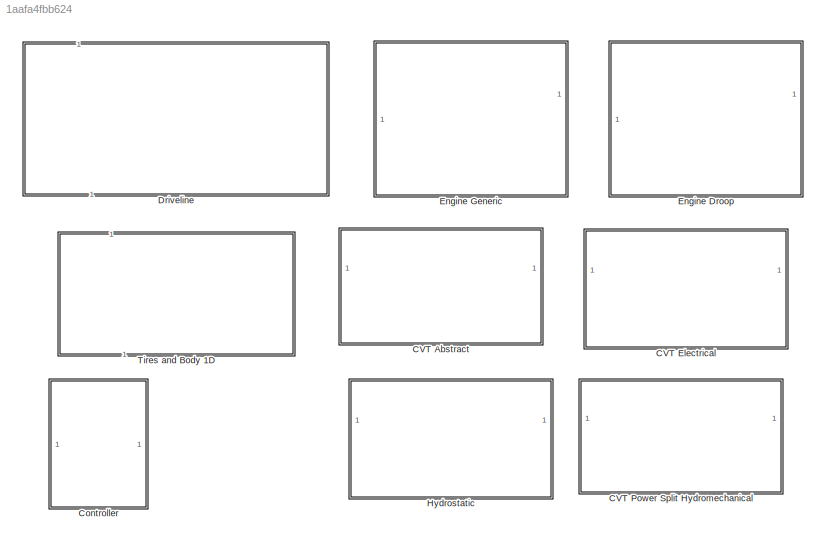
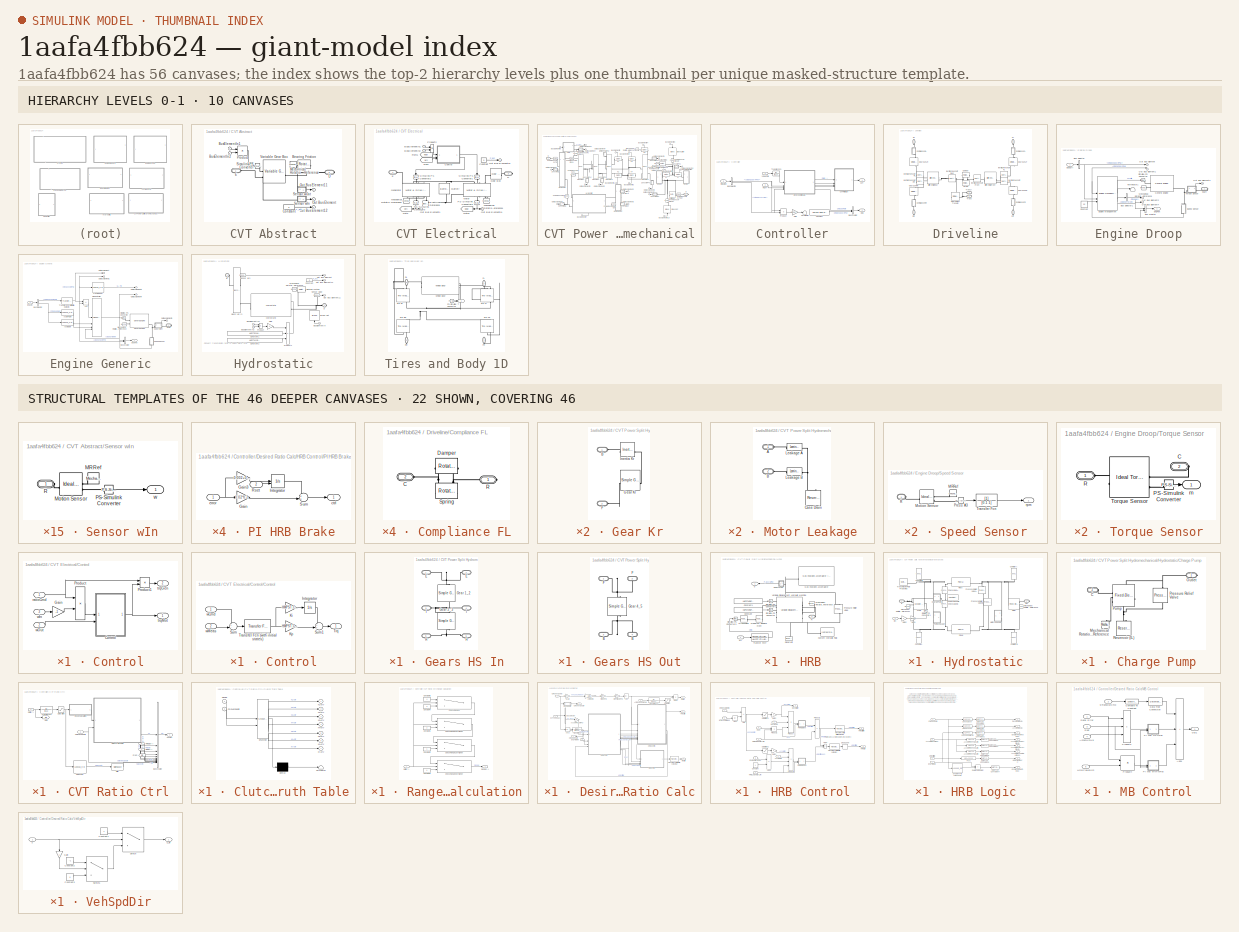
[diagram: thumbnail index - top-2 hierarchy levels (10 canvases) + 22 structural-template representatives of the remaining 46 canvases]
MODEL slx_1aafa4fbb624
KIND library
CONFIG SolverName = VariableStepAuto
BLOCK [SubSystem] CVT Abstract
BLOCK [Reference] CVT Abstract/Bearing Friction  REF=sdl_lib/Couplings & Drives/Springs & Dampers/Rotational Damper
  NameLocation = top
  SourceBlock = sdl_lib/Couplings & Drives/Springs & Dampers/Rotational Damper
  SourceType = Rotational Damper
BLOCK [Inport] CVT Abstract/BusElementIn1
BLOCK [Inport] CVT Abstract/BusElementIn2
BLOCK [Constant] CVT Abstract/Constant
  Value = 0
BLOCK [PMIOPort] CVT Abstract/D
  Port = 2
  Side = Right
BLOCK [PMIOPort] CVT Abstract/E
  Side = Left
BLOCK [Reference] CVT Abstract/Mechanical Rotational Reference  REF=fl_lib/Mechanical/Rotational Elements/Mechanical
Rotational Reference
  SourceBlock = fl_lib/Mechanical/Rotational Elements/Mechanical\nRotational Reference
  SourceType = Mechanical\nRotational Reference
BLOCK [Outport] CVT Abstract/Out Bus Element
BLOCK [Outport] CVT Abstract/Out Bus Element11
  NameLocation = top
BLOCK [Outport] CVT Abstract/Out Bus Element12
BLOCK [Product] CVT Abstract/Product
BLOCK [SubSystem] CVT Abstract/Sensor wIn
  NameLocation = top
BLOCK [Reference] CVT Abstract/Sensor wIn/MRRef  REF=fl_lib/Mechanical/Rotational Elements/Mechanical
Rotational Reference
  NameLocation = right
  SourceBlock = fl_lib/Mechanical/Rotational Elements/Mechanical\nRotational Reference
  SourceType = Mechanical\nRotational Reference
BLOCK [Reference] CVT Abstract/Sensor wIn/Motion Sensor  REF=fl_lib/Mechanical/Mechanical Sensors/Ideal Rotational
Motion Sensor
  SourceBlock = fl_lib/Mechanical/Mechanical Sensors/Ideal Rotational\nMotion Sensor
  SourceType = Ideal Rotational\nMotion Sensor
BLOCK [Reference] CVT Abstract/Sensor wIn/PS-Simulink Converter  REF=nesl_utility/PS-Simulink
Converter
  SourceBlock = nesl_utility/PS-Simulink\nConverter
  SourceType = PS-Simulink\nConverter
BLOCK [PMIOPort] CVT Abstract/Sensor wIn/R
  Side = Left
BLOCK [Outport] CVT Abstract/Sensor wIn/w
BLOCK [SubSystem] CVT Abstract/Sensor wOut
  NameLocation = top
BLOCK [Reference] CVT Abstract/Sensor wOut/MRRef  REF=fl_lib/Mechanical/Rotational Elements/Mechanical
Rotational Reference
  NameLocation = right
  SourceBlock = fl_lib/Mechanical/Rotational Elements/Mechanical\nRotational Reference
  SourceType = Mechanical\nRotational Reference
BLOCK [Reference] CVT Abstract/Sensor wOut/Motion Sensor  REF=fl_lib/Mechanical/Mechanical Sensors/Ideal Rotational
Motion Sensor
  SourceBlock = fl_lib/Mechanical/Mechanical Sensors/Ideal Rotational\nMotion Sensor
  SourceType = Ideal Rotational\nMotion Sensor
BLOCK [Reference] CVT Abstract/Sensor wOut/PS-Simulink Converter  REF=nesl_utility/PS-Simulink
Converter
  SourceBlock = nesl_utility/PS-Simulink\nConverter
  SourceType = PS-Simulink\nConverter
BLOCK [PMIOPort] CVT Abstract/Sensor wOut/R
  Side = Left
BLOCK [Outport] CVT Abstract/Sensor wOut/w
BLOCK [Reference] CVT Abstract/Simulink-PS Converter  REF=nesl_utility/Simulink-PS
Converter
  SourceBlock = nesl_utility/Simulink-PS\nConverter
  SourceType = Simulink-PS\nConverter
BLOCK [Reference] CVT Abstract/Variable Gear Box  REF=cvt_components_lib/Variable  (lib defined in slx_8b8a1d3bcfde, slx_9261503687ac, +1 more)
Gear Box
  SourceBlock = cvt_components_lib/Variable\nGear Box
  SourceType = Variable Ratio Gear Box
BLOCK [SubSystem] CVT Electrical
  VariantControl = Electrical
BLOCK [Reference] CVT Electrical/Battery  REF=batteryecm_lib/Battery
  LibrarySourceBlock = ee_lib/Sources/Battery
  NameLocation = right
  SourceBlock = batteryecm_lib/Battery
  SourceType = Battery
BLOCK [Inport] CVT Electrical/BusElementIn1
BLOCK [Inport] CVT Electrical/BusElementIn2
BLOCK [Constant] CVT Electrical/Constant
  Value = 0
BLOCK [SubSystem] CVT Electrical/Control
BLOCK [SubSystem] CVT Electrical/Control/Control
BLOCK [Integrator] CVT Electrical/Control/Control/Integrator
BLOCK [Gain] CVT Electrical/Control/Control/Ki
  Gain = HMPST.Control.Ki
BLOCK [Gain] CVT Electrical/Control/Control/Kp
  Gain = HMPST.Control.Kp
BLOCK [Sum] CVT Electrical/Control/Control/Sum
  Inputs = +-|
BLOCK [Sum] CVT Electrical/Control/Control/Sum1
  Inputs = ++|
BLOCK [Reference] CVT Electrical/Control/Control/Transfer Fcn (with initial states)  REF=simulink_extras/Additional
Linear/Transfer Fcn
(with initial states)
  SourceBlock = simulink_extras/Additional\nLinear/Transfer Fcn\n(with initial states)
  SourceType = Transfer Function with Initial States
BLOCK [Outport] CVT Electrical/Control/Control/Trq
BLOCK [Inport] CVT Electrical/Control/Control/wCmd
BLOCK [Inport] CVT Electrical/Control/Control/wMeas
  Port = 2
BLOCK [Gain] CVT Electrical/Control/Gain
  Gain = -1
BLOCK [Product] CVT Electrical/Control/Product
BLOCK [Product] CVT Electrical/Control/Product1
BLOCK [Inport] CVT Electrical/Control/ratioCmd
BLOCK [Outport] CVT Electrical/Control/trqGen
  Port = 2
BLOCK [Outport] CVT Electrical/Control/trqMot
BLOCK [Inport] CVT Electrical/Control/wIn
  Port = 3
BLOCK [Inport] CVT Electrical/Control/wOut
  Port = 2
BLOCK [PMIOPort] CVT Electrical/D
  Port = 2
  Side = Right
BLOCK [PMIOPort] CVT Electrical/E
  Side = Left
BLOCK [Reference] CVT Electrical/Electrical Reference  REF=fl_lib/Electrical/Electrical Elements/Electrical Reference
  NameLocation = right
  SourceBlock = fl_lib/Electrical/Electrical Elements/Electrical Reference
  SourceType = Electrical Reference
BLOCK [From] CVT Electrical/From
  GotoTag = wIn
BLOCK [From] CVT Electrical/From1
  GotoTag = wOut
BLOCK [Reference] CVT Electrical/Gear Box  REF=fl_lib/Mechanical/Mechanisms/Gear Box
  SourceBlock = fl_lib/Mechanical/Mechanisms/Gear Box
  SourceType = Gear Box
BLOCK [Reference] CVT Electrical/Generator  REF=ee_lib/Electromechanical/Motor & Drive
(System Level)
  NameLocation = left
  SourceBlock = ee_lib/Electromechanical/Motor & Drive\n(System Level)
  SourceType = Motor & Drive\n(System Level)
BLOCK [Goto] CVT Electrical/Goto
  GotoTag = wIn
BLOCK [Goto] CVT Electrical/Goto1
  GotoTag = wOut
  NameLocation = top
BLOCK [Reference] CVT Electrical/Mechanical Rotational Reference  REF=fl_lib/Mechanical/Rotational Elements/Mechanical
Rotational Reference
  NameLocation = right
  SourceBlock = fl_lib/Mechanical/Rotational Elements/Mechanical\nRotational Reference
  SourceType = Mechanical\nRotational Reference
BLOCK [Reference] CVT Electrical/Mechanical Rotational Reference1  REF=fl_lib/Mechanical/Rotational Elements/Mechanical
Rotational Reference
  NameLocation = right
  SourceBlock = fl_lib/Mechanical/Rotational Elements/Mechanical\nRotational Reference
  SourceType = Mechanical\nRotational Reference
BLOCK [Reference] CVT Electrical/Motor  REF=ee_lib/Electromechanical/Motor & Drive
(System Level)
  NameLocation = right
  SourceBlock = ee_lib/Electromechanical/Motor & Drive\n(System Level)
  SourceType = Motor & Drive\n(System Level)
BLOCK [Outport] CVT Electrical/Out Bus Element1
  NameLocation = top
BLOCK [Outport] CVT Electrical/Out Bus Element11
  NameLocation = top
BLOCK [Outport] CVT Electrical/Out Bus Element12
BLOCK [Reference] CVT Electrical/PS-Simulink Converter2  REF=nesl_utility/PS-Simulink
Converter
  NameLocation = left
  SourceBlock = nesl_utility/PS-Simulink\nConverter
  SourceType = PS-Simulink\nConverter
BLOCK [Reference] CVT Electrical/PS-Simulink Converter3  REF=nesl_utility/PS-Simulink
Converter
  NameLocation = left
  SourceBlock = nesl_utility/PS-Simulink\nConverter
  SourceType = PS-Simulink\nConverter
BLOCK [Product] CVT Electrical/Product2
BLOCK [Reference] CVT Electrical/Simulink-PS Converter1  REF=nesl_utility/Simulink-PS
Converter
  NameLocation = left
  SourceBlock = nesl_utility/Simulink-PS\nConverter
  SourceType = Simulink-PS\nConverter
BLOCK [Reference] CVT Electrical/Simulink-PS Converter2  REF=nesl_utility/Simulink-PS
Converter
  NameLocation = left
  SourceBlock = nesl_utility/Simulink-PS\nConverter
  SourceType = Simulink-PS\nConverter
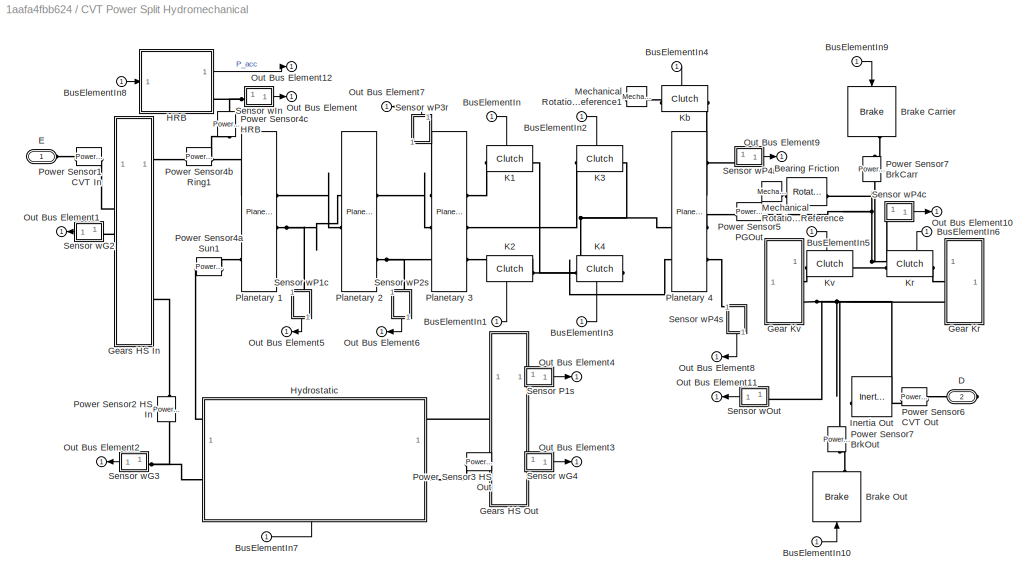
BLOCK [SubSystem] CVT Power Split Hydromechanical
BLOCK [Reference] CVT Power Split Hydromechanical/Bearing Friction  REF=sdl_lib/Couplings & Drives/Springs & Dampers/Rotational Damper
  NameLocation = top
  SourceBlock = sdl_lib/Couplings & Drives/Springs & Dampers/Rotational Damper
  SourceType = Rotational Damper
BLOCK [Reference] CVT Power Split Hydromechanical/Brake Carrier  REF=cvt_components_lib/Brake  (lib defined in slx_8b8a1d3bcfde, slx_9261503687ac, +1 more)
  NameLocation = right
  SourceBlock = cvt_components_lib/Brake
  SourceType = Disk Brake
BLOCK [Reference] CVT Power Split Hydromechanical/Brake Out  REF=cvt_components_lib/Brake  (lib defined in slx_8b8a1d3bcfde, slx_9261503687ac, +1 more)
  NameLocation = left
  SourceBlock = cvt_components_lib/Brake
  SourceType = Disk Brake
BLOCK [Inport] CVT Power Split Hydromechanical/BusElementIn
BLOCK [Inport] CVT Power Split Hydromechanical/BusElementIn1
BLOCK [Inport] CVT Power Split Hydromechanical/BusElementIn10
  NameLocation = top
BLOCK [Inport] CVT Power Split Hydromechanical/BusElementIn2
BLOCK [Inport] CVT Power Split Hydromechanical/BusElementIn3
BLOCK [Inport] CVT Power Split Hydromechanical/BusElementIn4
BLOCK [Inport] CVT Power Split Hydromechanical/BusElementIn5
  NameLocation = top
BLOCK [Inport] CVT Power Split Hydromechanical/BusElementIn6
  NameLocation = top
BLOCK [Inport] CVT Power Split Hydromechanical/BusElementIn7
BLOCK [Inport] CVT Power Split Hydromechanical/BusElementIn8
BLOCK [Inport] CVT Power Split Hydromechanical/BusElementIn9
  NameLocation = top
BLOCK [PMIOPort] CVT Power Split Hydromechanical/D
  Port = 2
  Side = Right
BLOCK [PMIOPort] CVT Power Split Hydromechanical/E
  Side = Left
BLOCK [SubSystem] CVT Power Split Hydromechanical/Gear Kr
BLOCK [PMIOPort] CVT Power Split Hydromechanical/Gear Kr/     B
  Side = Left
BLOCK [PMIOPort] CVT Power Split Hydromechanical/Gear Kr/    F
  Port = 2
  Side = Left
BLOCK [Reference] CVT Power Split Hydromechanical/Gear Kr/Gear Kr  REF=sdl_lib/Gears/Simple Gear
  SourceBlock = sdl_lib/Gears/Simple Gear
  SourceType = Simple Gear
BLOCK [Reference] CVT Power Split Hydromechanical/Gear Kr/Inertia Kr  REF=fl_lib/Mechanical/Rotational Elements/Inertia
  SourceBlock = fl_lib/Mechanical/Rotational Elements/Inertia
  SourceType = Inertia
BLOCK [SubSystem] CVT Power Split Hydromechanical/Gear Kv
BLOCK [PMIOPort] CVT Power Split Hydromechanical/Gear Kv/B
  Side = Right
BLOCK [PMIOPort] CVT Power Split Hydromechanical/Gear Kv/F
  Port = 2
  Side = Right
BLOCK [Reference] CVT Power Split Hydromechanical/Gear Kv/Gear Kv  REF=sdl_lib/Gears/Simple Gear
  SourceBlock = sdl_lib/Gears/Simple Gear
  SourceType = Simple Gear
BLOCK [Reference] CVT Power Split Hydromechanical/Gear Kv/Inertia Kv  REF=fl_lib/Mechanical/Rotational Elements/Inertia
  SourceBlock = fl_lib/Mechanical/Rotational Elements/Inertia
  SourceType = Inertia
BLOCK [SubSystem] CVT Power Split Hydromechanical/Gears HS In
BLOCK [PMIOPort] CVT Power Split Hydromechanical/Gears HS In/    E
  Side = Left
BLOCK [PMIOPort] CVT Power Split Hydromechanical/Gears HS In/    H
  Port = 5
  Side = Left
BLOCK [PMIOPort] CVT Power Split Hydromechanical/Gears HS In/    I
  Port = 3
  Side = Left
BLOCK [PMIOPort] CVT Power Split Hydromechanical/Gears HS In/E
  Port = 2
  Side = Right
BLOCK [Reference] CVT Power Split Hydromechanical/Gears HS In/Gear 1_2  REF=sdl_lib/Gears/Simple Gear
  NameLocation = left
  SourceBlock = sdl_lib/Gears/Simple Gear
  SourceType = Simple Gear
BLOCK [Reference] CVT Power Split Hydromechanical/Gears HS In/Gear 2_3  REF=sdl_lib/Gears/Simple Gear
  NameLocation = left
  SourceBlock = sdl_lib/Gears/Simple Gear
  SourceType = Simple Gear
BLOCK [PMIOPort] CVT Power Split Hydromechanical/Gears HS In/H
  Port = 6
  Side = Right
BLOCK [PMIOPort] CVT Power Split Hydromechanical/Gears HS In/I
  Port = 4
  Side = Right
BLOCK [SubSystem] CVT Power Split Hydromechanical/Gears HS Out
BLOCK [PMIOPort] CVT Power Split Hydromechanical/Gears HS Out/    B
  Port = 3
  Side = Left
BLOCK [PMIOPort] CVT Power Split Hydromechanical/Gears HS Out/    F
  Side = Left
BLOCK [PMIOPort] CVT Power Split Hydromechanical/Gears HS Out/B
  Port = 4
  Side = Right
BLOCK [PMIOPort] CVT Power Split Hydromechanical/Gears HS Out/F
  Port = 2
  Side = Right
BLOCK [Reference] CVT Power Split Hydromechanical/Gears HS Out/Gear 4_5  REF=sdl_lib/Gears/Simple Gear
  NameLocation = right
  SourceBlock = sdl_lib/Gears/Simple Gear
  SourceType = Simple Gear
BLOCK [SubSystem] CVT Power Split Hydromechanical/HRB
BLOCK [Constant] CVT Power Split Hydromechanical/HRB/Constant
  Value = HMPST.HRB.Pump.effVol
BLOCK [Constant] CVT Power Split Hydromechanical/HRB/Constant1
  Value = HMPST.HRB.Pump.effMech
BLOCK [Reference] CVT Power Split Hydromechanical/HRB/Custom Hydraulic Fluid  REF=fl_lib/Isothermal Liquid/Utilities/Isothermal Liquid
Properties (IL)
  LibrarySourceBlock = fl_lib/Hydraulic/Hydraulic Utilities/Custom Hydraulic\nFluid
  NameLocation = right
  SourceBlock = fl_lib/Isothermal Liquid/Utilities/Isothermal Liquid\nProperties (IL)
  SourceType = Isothermal Liquid\nProperties (IL)
BLOCK [Reference] CVT Power Split Hydromechanical/HRB/Gas-Charged Accumulator  REF=SimscapeFluids_lib/Isothermal Liquid/Tanks & Accumulators/Gas-Charged
Accumulator (IL)
  LibrarySourceBlock = sh_lib/Accumulators/Gas-Charged\nAccumulator
  SourceBlock = SimscapeFluids_lib/Isothermal Liquid/Tanks & Accumulators/Gas-Charged\nAccumulator (IL)
  SourceType = Gas-Charged\nAccumulator (IL)
BLOCK [Reference] CVT Power Split Hydromechanical/HRB/Maximum displacement  REF=fl_lib/Physical Signals/Nonlinear Operators/PS Saturation
  SourceBlock = fl_lib/Physical Signals/Nonlinear Operators/PS Saturation
  SourceType = PS Saturation
BLOCK [Reference] CVT Power Split Hydromechanical/HRB/Mechanical Rotational Reference  REF=fl_lib/Mechanical/Rotational Elements/Mechanical
Rotational Reference
  NameLocation = top
  SourceBlock = fl_lib/Mechanical/Rotational Elements/Mechanical\nRotational Reference
  SourceType = Mechanical\nRotational Reference
BLOCK [Reference] CVT Power Split Hydromechanical/HRB/Pressure Relief Valve  REF=SimscapeFluids_lib/Isothermal Liquid/Valves & Orifices/Pressure Control
Valves/Pressure Relief
Valve (IL)
  LibrarySourceBlock = sh_lib/Valves/Pressure Control\nValves/Pressure Relief\nValve
  NameLocation = right
  SourceBlock = SimscapeFluids_lib/Isothermal Liquid/Valves & Orifices/Pressure Control\nValves/Pressure Relief\nValve (IL)
  SourceType = Pressure Relief\nValve (IL)
BLOCK [PMIOPort] CVT Power Split Hydromechanical/HRB/R
  Side = Right
BLOCK [Reference] CVT Power Split Hydromechanical/HRB/Reservoir  REF=fl_lib/Isothermal Liquid/Elements/Reservoir (IL)
  LibrarySourceBlock = fl_lib/Hydraulic/Hydraulic Elements/Hydraulic Reference
  NameLocation = right
  SourceBlock = fl_lib/Isothermal Liquid/Elements/Reservoir (IL)
  SourceType = Reservoir (IL)
BLOCK [Reference] CVT Power Split Hydromechanical/HRB/Simulink-PS Converter  REF=nesl_utility/Simulink-PS
Converter
  SourceBlock = nesl_utility/Simulink-PS\nConverter
  SourceType = Simulink-PS\nConverter
BLOCK [Reference] CVT Power Split Hydromechanical/HRB/Simulink-PS Converter1  REF=nesl_utility/Simulink-PS
Converter
  SourceBlock = nesl_utility/Simulink-PS\nConverter
  SourceType = Simulink-PS\nConverter
BLOCK [Reference] CVT Power Split Hydromechanical/HRB/Simulink-PS Converter3  REF=nesl_utility/Simulink-PS
Converter
  SourceBlock = nesl_utility/Simulink-PS\nConverter
  SourceType = Simulink-PS\nConverter
BLOCK [SubSystem] CVT Power Split Hydromechanical/HRB/Subsystem
BLOCK [PMIOPort] CVT Power Split Hydromechanical/HRB/Subsystem/A
  Side = Left
BLOCK [Reference] CVT Power Split Hydromechanical/HRB/Subsystem/Hydraulic Pressure Sensor  REF=fl_lib/Isothermal Liquid/Sensors/Pressure Sensor (IL)
  LibrarySourceBlock = fl_lib/Hydraulic/Hydraulic Sensors/Hydraulic Pressure\nSensor
  SourceBlock = fl_lib/Isothermal Liquid/Sensors/Pressure Sensor (IL)
  SourceType = Pressure Sensor (IL)
BLOCK [Reference] CVT Power Split Hydromechanical/HRB/Subsystem/Hydraulic Reference1  REF=fl_lib/Isothermal Liquid/Elements/Reservoir (IL)
  LibrarySourceBlock = fl_lib/Hydraulic/Hydraulic Elements/Hydraulic Reference
  NameLocation = right
  SourceBlock = fl_lib/Isothermal Liquid/Elements/Reservoir (IL)
  SourceType = Reservoir (IL)
BLOCK [Reference] CVT Power Split Hydromechanical/HRB/Subsystem/PS-Simulink Converter  REF=nesl_utility/PS-Simulink
Converter
  SourceBlock = nesl_utility/PS-Simulink\nConverter
  SourceType = PS-Simulink\nConverter
BLOCK [Outport] CVT Power Split Hydromechanical/HRB/Subsystem/p
BLOCK [TransferFcn] CVT Power Split Hydromechanical/HRB/Transfer Fcn7
  Denominator = HMPST.Ctrl.HRB.Den
  Numerator = HMPST.Ctrl.HRB.Num
BLOCK [Reference] CVT Power Split Hydromechanical/HRB/Variable-Displacement Hydraulic Machine  REF=SimscapeFluids_lib/Isothermal Liquid/Pumps & Motors/Variable-Displacement
Motor (IL)
  LibrarySourceBlock = sh_legacy_lib/Hydraulic Machines/Variable-Displacement\nHydraulic Machine\n(External\nEfficiencies)
  NameLocation = right
  SourceBlock = SimscapeFluids_lib/Isothermal Liquid/Pumps & Motors/Variable-Displacement\nMotor (IL)
  SourceType = Variable-Displacement\nMotor (IL)
BLOCK [Outport] CVT Power Split Hydromechanical/HRB/p
BLOCK [Inport] CVT Power Split Hydromechanical/HRB/str
BLOCK [Reference] CVT Power Split Hydromechanical/HRB/stroke2disp  REF=fl_lib/Physical Signals/Functions/PS Gain
  SourceBlock = fl_lib/Physical Signals/Functions/PS Gain
  SourceType = PS Gain
BLOCK [SubSystem] CVT Power Split Hydromechanical/Hydrostatic
  NameLocation = top
  PortSchema = {"entries":[{"content":{"sides":[{"content":{"connectorIds":["LConn1"]},"type":"ConnectorPlacement.EquallySpacedRectSide","uuid":"eaa3b61f-d017-4906-bbf2-8ecd84d259f8"},{"content":{"connectorIds":["RConn1"],"side":"RIGHT"},"type":"ConnectorPlacement.EquallySpacedRectSide","uuid":"0fbcb9a0-a672-4528-9ae6-239f56fc7398"},{"content":{"side":"TOP"},"type":"ConnectorPlacement.EquallySpacedRectSide","uui...<+376ch>
BLOCK [Reference] CVT Power Split Hydromechanical/Hydrostatic/CV Charge Pump  REF=fl_lib/Isothermal Liquid/Elements/Constant Volume
Chamber (IL)
  NameLocation = top
  SourceBlock = fl_lib/Isothermal Liquid/Elements/Constant Volume\nChamber (IL)
  SourceType = Constant Volume\nChamber (IL)
BLOCK [Reference] CVT Power Split Hydromechanical/Hydrostatic/CV Motor A  REF=fl_lib/Isothermal Liquid/Elements/Constant Volume
Chamber (IL)
  NameLocation = left
  SourceBlock = fl_lib/Isothermal Liquid/Elements/Constant Volume\nChamber (IL)
  SourceType = Constant Volume\nChamber (IL)
BLOCK [Reference] CVT Power Split Hydromechanical/Hydrostatic/CV Motor B  REF=fl_lib/Isothermal Liquid/Elements/Constant Volume
Chamber (IL)
  NameLocation = left
  SourceBlock = fl_lib/Isothermal Liquid/Elements/Constant Volume\nChamber (IL)
  SourceType = Constant Volume\nChamber (IL)
BLOCK [Reference] CVT Power Split Hydromechanical/Hydrostatic/CV Pump A  REF=fl_lib/Isothermal Liquid/Elements/Constant Volume
Chamber (IL)
  NameLocation = left
  SourceBlock = fl_lib/Isothermal Liquid/Elements/Constant Volume\nChamber (IL)
  SourceType = Constant Volume\nChamber (IL)
BLOCK [Reference] CVT Power Split Hydromechanical/Hydrostatic/CV Pump B  REF=fl_lib/Isothermal Liquid/Elements/Constant Volume
Chamber (IL)
  NameLocation = left
  SourceBlock = fl_lib/Isothermal Liquid/Elements/Constant Volume\nChamber (IL)
  SourceType = Constant Volume\nChamber (IL)
BLOCK [SubSystem] CVT Power Split Hydromechanical/Hydrostatic/Charge Pump
  Tag = PublishSubsystem
BLOCK [PMIOPort] CVT Power Split Hydromechanical/Hydrostatic/Charge Pump/C
  NameLocation = top
  Port = 2
  Side = Left
BLOCK [Reference] CVT Power Split Hydromechanical/Hydrostatic/Charge Pump/Mechanical Rotational Reference  REF=fl_lib/Mechanical/Rotational Elements/Mechanical
Rotational Reference
  NameLocation = right
  SourceBlock = fl_lib/Mechanical/Rotational Elements/Mechanical\nRotational Reference
  SourceType = Mechanical\nRotational Reference
BLOCK [PMIOPort] CVT Power Split Hydromechanical/Hydrostatic/Charge Pump/Outlet
  Side = Right
BLOCK [Reference] CVT Power Split Hydromechanical/Hydrostatic/Charge Pump/Pressure Relief Valve  REF=SimscapeFluids_lib/Isothermal Liquid/Valves & Orifices/Pressure Control
Valves/Pressure Relief
Valve (IL)
  NameLocation = right
  SourceBlock = SimscapeFluids_lib/Isothermal Liquid/Valves & Orifices/Pressure Control\nValves/Pressure Relief\nValve (IL)
  SourceType = Pressure Relief\nValve (IL)
BLOCK [Reference] CVT Power Split Hydromechanical/Hydrostatic/Charge Pump/Pump  REF=SimscapeFluids_lib/Isothermal Liquid/Pumps & Motors/Fixed-Displacement
Pump (IL)
  NameLocation = right
  SourceBlock = SimscapeFluids_lib/Isothermal Liquid/Pumps & Motors/Fixed-Displacement\nPump (IL)
  SourceType = Fixed-Displacement\nPump (IL)
BLOCK [Reference] CVT Power Split Hydromechanical/Hydrostatic/Charge Pump/Reservoir (IL)  REF=fl_lib/Isothermal Liquid/Elements/Reservoir (IL)
  NameLocation = right
  SourceBlock = fl_lib/Isothermal Liquid/Elements/Reservoir (IL)
  SourceType = Reservoir (IL)
BLOCK [Reference] CVT Power Split Hydromechanical/Hydrostatic/Check Valve A  REF=SimscapeFluids_lib/Isothermal Liquid/Valves & Orifices/Directional Control
Valves/Check Valve (IL)
  NameLocation = right
  SourceBlock = SimscapeFluids_lib/Isothermal Liquid/Valves & Orifices/Directional Control\nValves/Check Valve (IL)
  SourceType = Check Valve (IL)
BLOCK [Reference] CVT Power Split Hydromechanical/Hydrostatic/Check Valve B  REF=SimscapeFluids_lib/Isothermal Liquid/Valves & Orifices/Directional Control
Valves/Check Valve (IL)
  NameLocation = right
  SourceBlock = SimscapeFluids_lib/Isothermal Liquid/Valves & Orifices/Directional Control\nValves/Check Valve (IL)
  SourceType = Check Valve (IL)
BLOCK [Inport] CVT Power Split Hydromechanical/Hydrostatic/Ctrl
BLOCK [Gain] CVT Power Split Hydromechanical/Hydrostatic/Gain1
  Gain = pumpNomDisp
BLOCK [Gain] CVT Power Split Hydromechanical/Hydrostatic/Gain2
  Gain = -1
BLOCK [PMIOPort] CVT Power Split Hydromechanical/Hydrostatic/In
  Side = Left
BLOCK [Reference] CVT Power Split Hydromechanical/Hydrostatic/Mechanical Rotational Reference  REF=fl_lib/Mechanical/Rotational Elements/Mechanical
Rotational Reference
  NameLocation = top
  SourceBlock = fl_lib/Mechanical/Rotational Elements/Mechanical\nRotational Reference
  SourceType = Mechanical\nRotational Reference
BLOCK [Reference] CVT Power Split Hydromechanical/Hydrostatic/Mechanical Rotational Reference1  REF=fl_lib/Mechanical/Rotational Elements/Mechanical
Rotational Reference
  SourceBlock = fl_lib/Mechanical/Rotational Elements/Mechanical\nRotational Reference
  SourceType = Mechanical\nRotational Reference
BLOCK [Reference] CVT Power Split Hydromechanical/Hydrostatic/Motor  REF=SimscapeFluids_lib/Isothermal Liquid/Pumps & Motors/Fixed-Displacement
Motor (IL)
  SourceBlock = SimscapeFluids_lib/Isothermal Liquid/Pumps & Motors/Fixed-Displacement\nMotor (IL)
  SourceType = Fixed-Displacement\nMotor (IL)
BLOCK [SubSystem] CVT Power Split Hydromechanical/Hydrostatic/Motor Leakage
  Tag = PublishSubsystem
BLOCK [PMIOPort] CVT Power Split Hydromechanical/Hydrostatic/Motor Leakage/A
  Side = Left
BLOCK [PMIOPort] CVT Power Split Hydromechanical/Hydrostatic/Motor Leakage/B
  Port = 2
  Side = Left
BLOCK [Reference] CVT Power Split Hydromechanical/Hydrostatic/Motor Leakage/Case Drain  REF=fl_lib/Isothermal Liquid/Elements/Reservoir (IL)
  NameLocation = right
  SourceBlock = fl_lib/Isothermal Liquid/Elements/Reservoir (IL)
  SourceType = Reservoir (IL)
BLOCK [Reference] CVT Power Split Hydromechanical/Hydrostatic/Motor Leakage/Leakage A  REF=fl_lib/Isothermal Liquid/Elements/Laminar Leakage (IL)
  SourceBlock = fl_lib/Isothermal Liquid/Elements/Laminar Leakage (IL)
  SourceType = Laminar Leakage (IL)
BLOCK [Reference] CVT Power Split Hydromechanical/Hydrostatic/Motor Leakage/Leakage B  REF=fl_lib/Isothermal Liquid/Elements/Laminar Leakage (IL)
  SourceBlock = fl_lib/Isothermal Liquid/Elements/Laminar Leakage (IL)
  SourceType = Laminar Leakage (IL)
BLOCK [PMIOPort] CVT Power Split Hydromechanical/Hydrostatic/Out
  Port = 2
  Side = Right
BLOCK [Reference] CVT Power Split Hydromechanical/Hydrostatic/Pipe A   REF=fl_lib/Isothermal Liquid/Elements/Pipe (IL)
  SourceBlock = fl_lib/Isothermal Liquid/Elements/Pipe (IL)
  SourceType = Pipe (IL)
BLOCK [Reference] CVT Power Split Hydromechanical/Hydrostatic/Pipe B  REF=fl_lib/Isothermal Liquid/Elements/Pipe (IL)
  SourceBlock = fl_lib/Isothermal Liquid/Elements/Pipe (IL)
  SourceType = Pipe (IL)
BLOCK [Reference] CVT Power Split Hydromechanical/Hydrostatic/Pressure Relief Valve A  REF=SimscapeFluids_lib/Isothermal Liquid/Valves & Orifices/Pressure Control
Valves/Pressure Relief
Valve (IL)
  NameLocation = left
  SourceBlock = SimscapeFluids_lib/Isothermal Liquid/Valves & Orifices/Pressure Control\nValves/Pressure Relief\nValve (IL)
  SourceType = Pressure Relief\nValve (IL)
BLOCK [Reference] CVT Power Split Hydromechanical/Hydrostatic/Pressure Relief Valve B  REF=SimscapeFluids_lib/Isothermal Liquid/Valves & Orifices/Pressure Control
Valves/Pressure Relief
Valve (IL)
  NameLocation = right
  SourceBlock = SimscapeFluids_lib/Isothermal Liquid/Valves & Orifices/Pressure Control\nValves/Pressure Relief\nValve (IL)
  SourceType = Pressure Relief\nValve (IL)
BLOCK [Reference] CVT Power Split Hydromechanical/Hydrostatic/Pump  REF=SimscapeFluids_lib/Isothermal Liquid/Pumps & Motors/Variable-Displacement
Pump (IL)
  SourceBlock = SimscapeFluids_lib/Isothermal Liquid/Pumps & Motors/Variable-Displacement\nPump (IL)
  SourceType = Variable-Displacement\nPump (IL)
BLOCK [SubSystem] CVT Power Split Hydromechanical/Hydrostatic/Pump Leakage
  Tag = PublishSubsystem
BLOCK [PMIOPort] CVT Power Split Hydromechanical/Hydrostatic/Pump Leakage/A
  Port = 2
  Side = Left
BLOCK [PMIOPort] CVT Power Split Hydromechanical/Hydrostatic/Pump Leakage/B
  Side = Left
BLOCK [Reference] CVT Power Split Hydromechanical/Hydrostatic/Pump Leakage/Case Drain  REF=fl_lib/Isothermal Liquid/Elements/Reservoir (IL)
  NameLocation = right
  SourceBlock = fl_lib/Isothermal Liquid/Elements/Reservoir (IL)
  SourceType = Reservoir (IL)
BLOCK [Reference] CVT Power Split Hydromechanical/Hydrostatic/Pump Leakage/Leakage A  REF=fl_lib/Isothermal Liquid/Elements/Laminar Leakage (IL)
  SourceBlock = fl_lib/Isothermal Liquid/Elements/Laminar Leakage (IL)
  SourceType = Laminar Leakage (IL)
BLOCK [Reference] CVT Power Split Hydromechanical/Hydrostatic/Pump Leakage/Leakage B  REF=fl_lib/Isothermal Liquid/Elements/Laminar Leakage (IL)
  SourceBlock = fl_lib/Isothermal Liquid/Elements/Laminar Leakage (IL)
  SourceType = Laminar Leakage (IL)
BLOCK [Reference] CVT Power Split Hydromechanical/Hydrostatic/Simulink-PS Converter1  REF=nesl_utility/Simulink-PS
Converter
  NameLocation = right
  SourceBlock = nesl_utility/Simulink-PS\nConverter
  SourceType = Simulink-PS\nConverter
BLOCK [Reference] CVT Power Split Hydromechanical/Hydrostatic/Transmission Fluid Properties  REF=fl_lib/Isothermal Liquid/Utilities/Isothermal Liquid
Properties (IL)
  SourceBlock = fl_lib/Isothermal Liquid/Utilities/Isothermal Liquid\nProperties (IL)
  SourceType = Isothermal Liquid\nProperties (IL)
BLOCK [Reference] CVT Power Split Hydromechanical/Inertia Out  REF=fl_lib/Mechanical/Rotational Elements/Inertia
  NameLocation = top
  SourceBlock = fl_lib/Mechanical/Rotational Elements/Inertia
  SourceType = Inertia
BLOCK [Reference] CVT Power Split Hydromechanical/K1  REF=cvt_components_lib/Clutch  (lib defined in slx_8b8a1d3bcfde, slx_9261503687ac, +1 more)
  SourceBlock = cvt_components_lib/Clutch
  SourceType = Clutch
BLOCK [Reference] CVT Power Split Hydromechanical/K2  REF=cvt_components_lib/Clutch  (lib defined in slx_8b8a1d3bcfde, slx_9261503687ac, +1 more)
  NameLocation = top
  SourceBlock = cvt_components_lib/Clutch
  SourceType = Clutch
BLOCK [Reference] CVT Power Split Hydromechanical/K3  REF=cvt_components_lib/Clutch  (lib defined in slx_8b8a1d3bcfde, slx_9261503687ac, +1 more)
  SourceBlock = cvt_components_lib/Clutch
  SourceType = Clutch
BLOCK [Reference] CVT Power Split Hydromechanical/K4  REF=cvt_components_lib/Clutch  (lib defined in slx_8b8a1d3bcfde, slx_9261503687ac, +1 more)
  NameLocation = top
  SourceBlock = cvt_components_lib/Clutch
  SourceType = Clutch
BLOCK [Reference] CVT Power Split Hydromechanical/Kb  REF=cvt_components_lib/Clutch  (lib defined in slx_8b8a1d3bcfde, slx_9261503687ac, +1 more)
  SourceBlock = cvt_components_lib/Clutch
  SourceType = Clutch
BLOCK [Reference] CVT Power Split Hydromechanical/Kr  REF=cvt_components_lib/Clutch  (lib defined in slx_8b8a1d3bcfde, slx_9261503687ac, +1 more)
  SourceBlock = cvt_components_lib/Clutch
  SourceType = Clutch
BLOCK [Reference] CVT Power Split Hydromechanical/Kv  REF=cvt_components_lib/Clutch  (lib defined in slx_8b8a1d3bcfde, slx_9261503687ac, +1 more)
  SourceBlock = cvt_components_lib/Clutch
  SourceType = Clutch
BLOCK [Reference] CVT Power Split Hydromechanical/Mechanical Rotational Reference  REF=fl_lib/Mechanical/Rotational Elements/Mechanical
Rotational Reference
  SourceBlock = fl_lib/Mechanical/Rotational Elements/Mechanical\nRotational Reference
  SourceType = Mechanical\nRotational Reference
BLOCK [Reference] CVT Power Split Hydromechanical/Mechanical Rotational Reference1  REF=fl_lib/Mechanical/Rotational Elements/Mechanical
Rotational Reference
  NameLocation = top
  SourceBlock = fl_lib/Mechanical/Rotational Elements/Mechanical\nRotational Reference
  SourceType = Mechanical\nRotational Reference
BLOCK [Outport] CVT Power Split Hydromechanical/Out Bus Element
BLOCK [Outport] CVT Power Split Hydromechanical/Out Bus Element1
BLOCK [Outport] CVT Power Split Hydromechanical/Out Bus Element10
  NameLocation = top
BLOCK [Outport] CVT Power Split Hydromechanical/Out Bus Element11
  NameLocation = top
BLOCK [Outport] CVT Power Split Hydromechanical/Out Bus Element12
BLOCK [Outport] CVT Power Split Hydromechanical/Out Bus Element2
BLOCK [Outport] CVT Power Split Hydromechanical/Out Bus Element3
BLOCK [Outport] CVT Power Split Hydromechanical/Out Bus Element4
  NameLocation = top
BLOCK [Outport] CVT Power Split Hydromechanical/Out Bus Element5
BLOCK [Outport] CVT Power Split Hydromechanical/Out Bus Element6
BLOCK [Outport] CVT Power Split Hydromechanical/Out Bus Element7
  NameLocation = top
BLOCK [Outport] CVT Power Split Hydromechanical/Out Bus Element8
BLOCK [Outport] CVT Power Split Hydromechanical/Out Bus Element9
  NameLocation = top
BLOCK [Reference] CVT Power Split Hydromechanical/Planetary 1  REF=cvt_components_lib/Planetary  (lib defined in slx_8b8a1d3bcfde, slx_9261503687ac, +1 more)
  SourceBlock = cvt_components_lib/Planetary
  SourceType = Planetary Gear
BLOCK [Reference] CVT Power Split Hydromechanical/Planetary 2  REF=cvt_components_lib/Planetary  (lib defined in slx_8b8a1d3bcfde, slx_9261503687ac, +1 more)
  SourceBlock = cvt_components_lib/Planetary
  SourceType = Planetary Gear
BLOCK [Reference] CVT Power Split Hydromechanical/Planetary 3  REF=cvt_components_lib/Planetary  (lib defined in slx_8b8a1d3bcfde, slx_9261503687ac, +1 more)
  SourceBlock = cvt_components_lib/Planetary
  SourceType = Planetary Gear
BLOCK [Reference] CVT Power Split Hydromechanical/Planetary 4  REF=cvt_components_lib/Planetary  (lib defined in slx_8b8a1d3bcfde, slx_9261503687ac, +1 more)
  SourceBlock = cvt_components_lib/Planetary
  SourceType = Planetary Gear
BLOCK [Reference] CVT Power Split Hydromechanical/Power Sensor1 CVT In  REF=cvt_components_lib/Power  (lib defined in slx_8b8a1d3bcfde, slx_9261503687ac, +1 more)
Sensor
  SourceBlock = cvt_components_lib/Power\nSensor
  SourceType = SubSystem
BLOCK [Reference] CVT Power Split Hydromechanical/Power Sensor2 HS In  REF=cvt_components_lib/Power  (lib defined in slx_8b8a1d3bcfde, slx_9261503687ac, +1 more)
Sensor
  NameLocation = left
  SourceBlock = cvt_components_lib/Power\nSensor
  SourceType = SubSystem
BLOCK [Reference] CVT Power Split Hydromechanical/Power Sensor3 HS Out  REF=cvt_components_lib/Power  (lib defined in slx_8b8a1d3bcfde, slx_9261503687ac, +1 more)
Sensor
  SourceBlock = cvt_components_lib/Power\nSensor
  SourceType = SubSystem
BLOCK [Reference] CVT Power Split Hydromechanical/Power Sensor4a Sun1  REF=cvt_components_lib/Power  (lib defined in slx_8b8a1d3bcfde, slx_9261503687ac, +1 more)
Sensor
  SourceBlock = cvt_components_lib/Power\nSensor
  SourceType = SubSystem
BLOCK [Reference] CVT Power Split Hydromechanical/Power Sensor4b Ring1  REF=cvt_components_lib/Power  (lib defined in slx_8b8a1d3bcfde, slx_9261503687ac, +1 more)
Sensor
  SourceBlock = cvt_components_lib/Power\nSensor
  SourceType = SubSystem
BLOCK [Reference] CVT Power Split Hydromechanical/Power Sensor4c HRB  REF=cvt_components_lib/Power  (lib defined in slx_8b8a1d3bcfde, slx_9261503687ac, +1 more)
Sensor
  NameLocation = right
  SourceBlock = cvt_components_lib/Power\nSensor
  SourceType = SubSystem
BLOCK [Reference] CVT Power Split Hydromechanical/Power Sensor5 PGOut  REF=cvt_components_lib/Power  (lib defined in slx_8b8a1d3bcfde, slx_9261503687ac, +1 more)
Sensor
  SourceBlock = cvt_components_lib/Power\nSensor
  SourceType = SubSystem
BLOCK [Reference] CVT Power Split Hydromechanical/Power Sensor6 CVT Out  REF=cvt_components_lib/Power  (lib defined in slx_8b8a1d3bcfde, slx_9261503687ac, +1 more)
Sensor
  SourceBlock = cvt_components_lib/Power\nSensor
  SourceType = SubSystem
BLOCK [Reference] CVT Power Split Hydromechanical/Power Sensor7 BrkCarr  REF=cvt_components_lib/Power  (lib defined in slx_8b8a1d3bcfde, slx_9261503687ac, +1 more)
Sensor
  NameLocation = right
  SourceBlock = cvt_components_lib/Power\nSensor
  SourceType = SubSystem
BLOCK [Reference] CVT Power Split Hydromechanical/Power Sensor7 BrkOut  REF=cvt_components_lib/Power  (lib defined in slx_8b8a1d3bcfde, slx_9261503687ac, +1 more)
Sensor
  NameLocation = right
  SourceBlock = cvt_components_lib/Power\nSensor
  SourceType = SubSystem
BLOCK [SubSystem] CVT Power Split Hydromechanical/Sensor P1s
BLOCK [Reference] CVT Power Split Hydromechanical/Sensor P1s/MRRef  REF=fl_lib/Mechanical/Rotational Elements/Mechanical
Rotational Reference
  NameLocation = right
  SourceBlock = fl_lib/Mechanical/Rotational Elements/Mechanical\nRotational Reference
  SourceType = Mechanical\nRotational Reference
BLOCK [Reference] CVT Power Split Hydromechanical/Sensor P1s/Motion Sensor  REF=fl_lib/Mechanical/Mechanical Sensors/Ideal Rotational
Motion Sensor
  SourceBlock = fl_lib/Mechanical/Mechanical Sensors/Ideal Rotational\nMotion Sensor
  SourceType = Ideal Rotational\nMotion Sensor
BLOCK [Reference] CVT Power Split Hydromechanical/Sensor P1s/PS-Simulink Converter  REF=nesl_utility/PS-Simulink
Converter
  SourceBlock = nesl_utility/PS-Simulink\nConverter
  SourceType = PS-Simulink\nConverter
BLOCK [PMIOPort] CVT Power Split Hydromechanical/Sensor P1s/R
  Side = Left
BLOCK [Outport] CVT Power Split Hydromechanical/Sensor P1s/w
BLOCK [SubSystem] CVT Power Split Hydromechanical/Sensor wG2
BLOCK [Reference] CVT Power Split Hydromechanical/Sensor wG2/MRRef  REF=fl_lib/Mechanical/Rotational Elements/Mechanical
Rotational Reference
  NameLocation = right
  SourceBlock = fl_lib/Mechanical/Rotational Elements/Mechanical\nRotational Reference
  SourceType = Mechanical\nRotational Reference
BLOCK [Reference] CVT Power Split Hydromechanical/Sensor wG2/Motion Sensor  REF=fl_lib/Mechanical/Mechanical Sensors/Ideal Rotational
Motion Sensor
  SourceBlock = fl_lib/Mechanical/Mechanical Sensors/Ideal Rotational\nMotion Sensor
  SourceType = Ideal Rotational\nMotion Sensor
BLOCK [Reference] CVT Power Split Hydromechanical/Sensor wG2/PS-Simulink Converter  REF=nesl_utility/PS-Simulink
Converter
  SourceBlock = nesl_utility/PS-Simulink\nConverter
  SourceType = PS-Simulink\nConverter
BLOCK [PMIOPort] CVT Power Split Hydromechanical/Sensor wG2/R
  Side = Left
BLOCK [Outport] CVT Power Split Hydromechanical/Sensor wG2/w
BLOCK [SubSystem] CVT Power Split Hydromechanical/Sensor wG3
BLOCK [Reference] CVT Power Split Hydromechanical/Sensor wG3/MRRef  REF=fl_lib/Mechanical/Rotational Elements/Mechanical
Rotational Reference
  NameLocation = right
  SourceBlock = fl_lib/Mechanical/Rotational Elements/Mechanical\nRotational Reference
  SourceType = Mechanical\nRotational Reference
BLOCK [Reference] CVT Power Split Hydromechanical/Sensor wG3/Motion Sensor  REF=fl_lib/Mechanical/Mechanical Sensors/Ideal Rotational
Motion Sensor
  SourceBlock = fl_lib/Mechanical/Mechanical Sensors/Ideal Rotational\nMotion Sensor
  SourceType = Ideal Rotational\nMotion Sensor
BLOCK [Reference] CVT Power Split Hydromechanical/Sensor wG3/PS-Simulink Converter  REF=nesl_utility/PS-Simulink
Converter
  SourceBlock = nesl_utility/PS-Simulink\nConverter
  SourceType = PS-Simulink\nConverter
BLOCK [PMIOPort] CVT Power Split Hydromechanical/Sensor wG3/R
  Side = Left
BLOCK [Outport] CVT Power Split Hydromechanical/Sensor wG3/w
BLOCK [SubSystem] CVT Power Split Hydromechanical/Sensor wG4
BLOCK [Reference] CVT Power Split Hydromechanical/Sensor wG4/MRRef  REF=fl_lib/Mechanical/Rotational Elements/Mechanical
Rotational Reference
  NameLocation = right
  SourceBlock = fl_lib/Mechanical/Rotational Elements/Mechanical\nRotational Reference
  SourceType = Mechanical\nRotational Reference
BLOCK [Reference] CVT Power Split Hydromechanical/Sensor wG4/Motion Sensor  REF=fl_lib/Mechanical/Mechanical Sensors/Ideal Rotational
Motion Sensor
  SourceBlock = fl_lib/Mechanical/Mechanical Sensors/Ideal Rotational\nMotion Sensor
  SourceType = Ideal Rotational\nMotion Sensor
BLOCK [Reference] CVT Power Split Hydromechanical/Sensor wG4/PS-Simulink Converter  REF=nesl_utility/PS-Simulink
Converter
  SourceBlock = nesl_utility/PS-Simulink\nConverter
  SourceType = PS-Simulink\nConverter
BLOCK [PMIOPort] CVT Power Split Hydromechanical/Sensor wG4/R
  Side = Left
BLOCK [Outport] CVT Power Split Hydromechanical/Sensor wG4/w
BLOCK [SubSystem] CVT Power Split Hydromechanical/Sensor wIn
  NameLocation = top
BLOCK [Reference] CVT Power Split Hydromechanical/Sensor wIn/MRRef  REF=fl_lib/Mechanical/Rotational Elements/Mechanical
Rotational Reference
  NameLocation = right
  SourceBlock = fl_lib/Mechanical/Rotational Elements/Mechanical\nRotational Reference
  SourceType = Mechanical\nRotational Reference
BLOCK [Reference] CVT Power Split Hydromechanical/Sensor wIn/Motion Sensor  REF=fl_lib/Mechanical/Mechanical Sensors/Ideal Rotational
Motion Sensor
  SourceBlock = fl_lib/Mechanical/Mechanical Sensors/Ideal Rotational\nMotion Sensor
  SourceType = Ideal Rotational\nMotion Sensor
BLOCK [Reference] CVT Power Split Hydromechanical/Sensor wIn/PS-Simulink Converter  REF=nesl_utility/PS-Simulink
Converter
  SourceBlock = nesl_utility/PS-Simulink\nConverter
  SourceType = PS-Simulink\nConverter
BLOCK [PMIOPort] CVT Power Split Hydromechanical/Sensor wIn/R
  Side = Left
BLOCK [Outport] CVT Power Split Hydromechanical/Sensor wIn/w
BLOCK [SubSystem] CVT Power Split Hydromechanical/Sensor wOut
  NameLocation = top
BLOCK [Reference] CVT Power Split Hydromechanical/Sensor wOut/MRRef  REF=fl_lib/Mechanical/Rotational Elements/Mechanical
Rotational Reference
  NameLocation = right
  SourceBlock = fl_lib/Mechanical/Rotational Elements/Mechanical\nRotational Reference
  SourceType = Mechanical\nRotational Reference
BLOCK [Reference] CVT Power Split Hydromechanical/Sensor wOut/Motion Sensor  REF=fl_lib/Mechanical/Mechanical Sensors/Ideal Rotational
Motion Sensor
  SourceBlock = fl_lib/Mechanical/Mechanical Sensors/Ideal Rotational\nMotion Sensor
  SourceType = Ideal Rotational\nMotion Sensor
BLOCK [Reference] CVT Power Split Hydromechanical/Sensor wOut/PS-Simulink Converter  REF=nesl_utility/PS-Simulink
Converter
  SourceBlock = nesl_utility/PS-Simulink\nConverter
  SourceType = PS-Simulink\nConverter
BLOCK [PMIOPort] CVT Power Split Hydromechanical/Sensor wOut/R
  Side = Left
BLOCK [Outport] CVT Power Split Hydromechanical/Sensor wOut/w
BLOCK [SubSystem] CVT Power Split Hydromechanical/Sensor wP1c
  NameLocation = right
BLOCK [Reference] CVT Power Split Hydromechanical/Sensor wP1c/MRRef  REF=fl_lib/Mechanical/Rotational Elements/Mechanical
Rotational Reference
  NameLocation = right
  SourceBlock = fl_lib/Mechanical/Rotational Elements/Mechanical\nRotational Reference
  SourceType = Mechanical\nRotational Reference
BLOCK [Reference] CVT Power Split Hydromechanical/Sensor wP1c/Motion Sensor  REF=fl_lib/Mechanical/Mechanical Sensors/Ideal Rotational
Motion Sensor
  SourceBlock = fl_lib/Mechanical/Mechanical Sensors/Ideal Rotational\nMotion Sensor
  SourceType = Ideal Rotational\nMotion Sensor
BLOCK [Reference] CVT Power Split Hydromechanical/Sensor wP1c/PS-Simulink Converter  REF=nesl_utility/PS-Simulink
Converter
  SourceBlock = nesl_utility/PS-Simulink\nConverter
  SourceType = PS-Simulink\nConverter
BLOCK [PMIOPort] CVT Power Split Hydromechanical/Sensor wP1c/R
  Side = Left
BLOCK [Outport] CVT Power Split Hydromechanical/Sensor wP1c/w
BLOCK [SubSystem] CVT Power Split Hydromechanical/Sensor wP2s
  NameLocation = right
BLOCK [Reference] CVT Power Split Hydromechanical/Sensor wP2s/MRRef  REF=fl_lib/Mechanical/Rotational Elements/Mechanical
Rotational Reference
  NameLocation = right
  SourceBlock = fl_lib/Mechanical/Rotational Elements/Mechanical\nRotational Reference
  SourceType = Mechanical\nRotational Reference
BLOCK [Reference] CVT Power Split Hydromechanical/Sensor wP2s/Motion Sensor  REF=fl_lib/Mechanical/Mechanical Sensors/Ideal Rotational
Motion Sensor
  SourceBlock = fl_lib/Mechanical/Mechanical Sensors/Ideal Rotational\nMotion Sensor
  SourceType = Ideal Rotational\nMotion Sensor
BLOCK [Reference] CVT Power Split Hydromechanical/Sensor wP2s/PS-Simulink Converter  REF=nesl_utility/PS-Simulink
Converter
  SourceBlock = nesl_utility/PS-Simulink\nConverter
  SourceType = PS-Simulink\nConverter
BLOCK [PMIOPort] CVT Power Split Hydromechanical/Sensor wP2s/R
  Side = Left
BLOCK [Outport] CVT Power Split Hydromechanical/Sensor wP2s/w
BLOCK [SubSystem] CVT Power Split Hydromechanical/Sensor wP3r
  NameLocation = right
BLOCK [Reference] CVT Power Split Hydromechanical/Sensor wP3r/MRRef  REF=fl_lib/Mechanical/Rotational Elements/Mechanical
Rotational Reference
  NameLocation = right
  SourceBlock = fl_lib/Mechanical/Rotational Elements/Mechanical\nRotational Reference
  SourceType = Mechanical\nRotational Reference
BLOCK [Reference] CVT Power Split Hydromechanical/Sensor wP3r/Motion Sensor  REF=fl_lib/Mechanical/Mechanical Sensors/Ideal Rotational
Motion Sensor
  SourceBlock = fl_lib/Mechanical/Mechanical Sensors/Ideal Rotational\nMotion Sensor
  SourceType = Ideal Rotational\nMotion Sensor
BLOCK [Reference] CVT Power Split Hydromechanical/Sensor wP3r/PS-Simulink Converter  REF=nesl_utility/PS-Simulink
Converter
  SourceBlock = nesl_utility/PS-Simulink\nConverter
  SourceType = PS-Simulink\nConverter
BLOCK [PMIOPort] CVT Power Split Hydromechanical/Sensor wP3r/R
  Side = Left
BLOCK [Outport] CVT Power Split Hydromechanical/Sensor wP3r/w
BLOCK [SubSystem] CVT Power Split Hydromechanical/Sensor wP4c
BLOCK [Reference] CVT Power Split Hydromechanical/Sensor wP4c/MRRef  REF=fl_lib/Mechanical/Rotational Elements/Mechanical
Rotational Reference
  NameLocation = right
  SourceBlock = fl_lib/Mechanical/Rotational Elements/Mechanical\nRotational Reference
  SourceType = Mechanical\nRotational Reference
BLOCK [Reference] CVT Power Split Hydromechanical/Sensor wP4c/Motion Sensor  REF=fl_lib/Mechanical/Mechanical Sensors/Ideal Rotational
Motion Sensor
  SourceBlock = fl_lib/Mechanical/Mechanical Sensors/Ideal Rotational\nMotion Sensor
  SourceType = Ideal Rotational\nMotion Sensor
BLOCK [Reference] CVT Power Split Hydromechanical/Sensor wP4c/PS-Simulink Converter  REF=nesl_utility/PS-Simulink
Converter
  SourceBlock = nesl_utility/PS-Simulink\nConverter
  SourceType = PS-Simulink\nConverter
BLOCK [PMIOPort] CVT Power Split Hydromechanical/Sensor wP4c/R
  Side = Left
BLOCK [Outport] CVT Power Split Hydromechanical/Sensor wP4c/w
BLOCK [SubSystem] CVT Power Split Hydromechanical/Sensor wP4r
  NameLocation = top
BLOCK [Reference] CVT Power Split Hydromechanical/Sensor wP4r/MRRef  REF=fl_lib/Mechanical/Rotational Elements/Mechanical
Rotational Reference
  NameLocation = right
  SourceBlock = fl_lib/Mechanical/Rotational Elements/Mechanical\nRotational Reference
  SourceType = Mechanical\nRotational Reference
BLOCK [Reference] CVT Power Split Hydromechanical/Sensor wP4r/Motion Sensor  REF=fl_lib/Mechanical/Mechanical Sensors/Ideal Rotational
Motion Sensor
  SourceBlock = fl_lib/Mechanical/Mechanical Sensors/Ideal Rotational\nMotion Sensor
  SourceType = Ideal Rotational\nMotion Sensor
BLOCK [Reference] CVT Power Split Hydromechanical/Sensor wP4r/PS-Simulink Converter  REF=nesl_utility/PS-Simulink
Converter
  SourceBlock = nesl_utility/PS-Simulink\nConverter
  SourceType = PS-Simulink\nConverter
BLOCK [PMIOPort] CVT Power Split Hydromechanical/Sensor wP4r/R
  Side = Left
BLOCK [Outport] CVT Power Split Hydromechanical/Sensor wP4r/w
BLOCK [SubSystem] CVT Power Split Hydromechanical/Sensor wP4s
  NameLocation = right
BLOCK [Reference] CVT Power Split Hydromechanical/Sensor wP4s/MRRef  REF=fl_lib/Mechanical/Rotational Elements/Mechanical
Rotational Reference
  NameLocation = right
  SourceBlock = fl_lib/Mechanical/Rotational Elements/Mechanical\nRotational Reference
  SourceType = Mechanical\nRotational Reference
BLOCK [Reference] CVT Power Split Hydromechanical/Sensor wP4s/Motion Sensor  REF=fl_lib/Mechanical/Mechanical Sensors/Ideal Rotational
Motion Sensor
  SourceBlock = fl_lib/Mechanical/Mechanical Sensors/Ideal Rotational\nMotion Sensor
  SourceType = Ideal Rotational\nMotion Sensor
BLOCK [Reference] CVT Power Split Hydromechanical/Sensor wP4s/PS-Simulink Converter  REF=nesl_utility/PS-Simulink
Converter
  SourceBlock = nesl_utility/PS-Simulink\nConverter
  SourceType = PS-Simulink\nConverter
BLOCK [PMIOPort] CVT Power Split Hydromechanical/Sensor wP4s/R
  Side = Left
BLOCK [Outport] CVT Power Split Hydromechanical/Sensor wP4s/w
BLOCK [SubSystem] Controller
BLOCK [BusCreator] Controller/Bus Creator
  DisplayOption = bar
  InheritFromInputs = on
  Inputs = 2
BLOCK [BusSelector] Controller/Bus Selector
  OutputSignals = ActuEngSpd(RPM),ActuEngTrq(Nm)
BLOCK [Outport] Controller/CVT
BLOCK [SubSystem] Controller/CVT Ratio Ctrl
BLOCK [BusCreator] Controller/CVT Ratio Ctrl/Bus Creator
  DisplayOption = bar
  InheritFromInputs = on
  Inputs = 12
BLOCK [Outport] Controller/CVT Ratio Ctrl/CVT Ctrl
BLOCK [SubSystem] Controller/CVT Ratio Ctrl/Clutch Truth Table
  ErrorFcn = Stateflow.Translate.translate
  PermitHierarchicalResolution = ExplicitOnly
  SFBlockType = Chart
  TreatAsAtomicUnit = on
BLOCK [Demux] Controller/CVT Ratio Ctrl/Clutch Truth Table/ Demux 
  Outputs = 1
BLOCK [S-Function] Controller/CVT Ratio Ctrl/Clutch Truth Table/ SFunction 
  EnableBusSupport = off
  FunctionName = sf_sfun
  PortCounts = [2 8]
  SFcnIsStateOwnerBlock = off
  SFunctionDeploymentMode = off
  Tag = Stateflow S-Function 1
BLOCK [Terminator] Controller/CVT Ratio Ctrl/Clutch Truth Table/ Terminator 
BLOCK [Inport] Controller/CVT Ratio Ctrl/Clutch Truth Table/CmdVehSpdDir
  Port = 2
BLOCK [Outport] Controller/CVT Ratio Ctrl/Clutch Truth Table/K1Actv
BLOCK [Outport] Controller/CVT Ratio Ctrl/Clutch Truth Table/K2Actv
  Port = 2
BLOCK [Outport] Controller/CVT Ratio Ctrl/Clutch Truth Table/K3Actv
  Port = 3
BLOCK [Outport] Controller/CVT Ratio Ctrl/Clutch Truth Table/K4Actv
  Port = 4
BLOCK [Outport] Controller/CVT Ratio Ctrl/Clutch Truth Table/KbActv
  Port = 5
BLOCK [Outport] Controller/CVT Ratio Ctrl/Clutch Truth Table/KrActv
  Port = 7
BLOCK [Outport] Controller/CVT Ratio Ctrl/Clutch Truth Table/KvActv
  Port = 6
BLOCK [Inport] Controller/CVT Ratio Ctrl/Clutch Truth Table/Range
BLOCK [Inport] Controller/CVT Ratio Ctrl/CmdVehSpdDir
  Port = 2
BLOCK [StateSpace] Controller/CVT Ratio Ctrl/Filter
  A = -200
  C = 200
  D = 0
  InitialCondition = HMPST.Ctrl.Swash.XY_A(1,1)/200
BLOCK [From] Controller/CVT Ratio Ctrl/From
  GotoTag = ratio
BLOCK [Goto] Controller/CVT Ratio Ctrl/Goto
  GotoTag = ratio
BLOCK [Inport] Controller/CVT Ratio Ctrl/HRBCtrl (-)
  Port = 3
BLOCK [Inport] Controller/CVT Ratio Ctrl/MBCtrl (-)
  Port = 4
BLOCK [SubSystem] Controller/CVT Ratio Ctrl/Range Calculation
BLOCK [Switch] Controller/CVT Ratio Ctrl/Range Calculation/Check Range 0 or higher
  InputSameDT = off
  SaturateOnIntegerOverflow = off
  Threshold = XY_I(1,2)
BLOCK [Switch] Controller/CVT Ratio Ctrl/Range Calculation/Check Range 2 or higher
  InputSameDT = off
  SaturateOnIntegerOverflow = off
  Threshold = XY_I(2,2)
BLOCK [Switch] Controller/CVT Ratio Ctrl/Range Calculation/Check Range 3 or higher
  InputSameDT = off
  SaturateOnIntegerOverflow = off
  Threshold = XY_I(3,2)
BLOCK [Switch] Controller/CVT Ratio Ctrl/Range Calculation/Check Range 4
  InputSameDT = off
  SaturateOnIntegerOverflow = off
  Threshold = XY_I(4,2)
BLOCK [Constant] Controller/CVT Ratio Ctrl/Range Calculation/Constant1
  SampleTime = HMPST.Simu.TimeStep
  Value = 2
BLOCK [Constant] Controller/CVT Ratio Ctrl/Range Calculation/Constant2
  SampleTime = HMPST.Simu.TimeStep
BLOCK [Constant] Controller/CVT Ratio Ctrl/Range Calculation/Constant3
  SampleTime = HMPST.Simu.TimeStep
  Value = -1
BLOCK [Constant] Controller/CVT Ratio Ctrl/Range Calculation/Constant4
  SampleTime = HMPST.Simu.TimeStep
  Value = 3
BLOCK [Constant] Controller/CVT Ratio Ctrl/Range Calculation/Constant5
  SampleTime = HMPST.Simu.TimeStep
  Value = 4
BLOCK [Outport] Controller/CVT Ratio Ctrl/Range Calculation/Range (-)
BLOCK [Inport] Controller/CVT Ratio Ctrl/Range Calculation/Ratio (-)
BLOCK [Inport] Controller/CVT Ratio Ctrl/Ratio (-)
BLOCK [Saturate] Controller/CVT Ratio Ctrl/Saturation
  LowerLimit = 0
  UpperLimit = HMPST.DesignReq.MaxCVTOutputSpeed/HMPST.Eng.wTarget
  ZeroCross = off
BLOCK [Lookup_n-D] Controller/CVT Ratio Ctrl/Swash Ctrl
  BeginIndexSearchUsingPreviousIndexResult = on
  BreakpointsForDimension1 = HMPST.Ctrl.Swash.XY_A(:,2)
  InputPortMap = u0
  InternalRulePriority = Speed
  NumberOfTableDimensions = 1
  RndMeth = Simplest
  Table = HMPST.Ctrl.Swash.XY_A(:,1)
BLOCK [TransferFcn] Controller/CVT Ratio Ctrl/Transfer Fcn
  Denominator = [0.1 1]
BLOCK [Constant] Controller/Constant
  Value = HMPST.Eng.wTarget
BLOCK [SubSystem] Controller/Desired Ratio Calc
BLOCK [Abs] Controller/Desired Ratio Calc/Abs
  SaturateOnIntegerOverflow = off
  ZeroCross = off
BLOCK [Abs] Controller/Desired Ratio Calc/Abs2
  SaturateOnIntegerOverflow = off
  ZeroCross = off
BLOCK [Gain] Controller/Desired Ratio Calc/AccumPress (MPa)
BLOCK [Inport] Controller/Desired Ratio Calc/ActuEngSpd (RPM)
  Port = 2
BLOCK [BusSelector] Controller/Desired Ratio Calc/Bus Selector
  NameLocation = right
  OutputSignals = OutputShaft,P_acc
BLOCK [Inport] Controller/Desired Ratio Calc/CVTFeedback
  Port = 3
BLOCK [Outport] Controller/Desired Ratio Calc/CmdSpdRate
  Port = 5
BLOCK [Inport] Controller/Desired Ratio Calc/CmdVehSpd (%)
  NameLocation = top
  SampleTime = HMPST.Simu.TimeStep
BLOCK [Outport] Controller/Desired Ratio Calc/CmdVehSpdDir
  Port = 2
BLOCK [Product] Controller/Desired Ratio Calc/Divide
  Inputs = */
BLOCK [Inport] Controller/Desired Ratio Calc/EngTrq (Nm)
  Port = 4
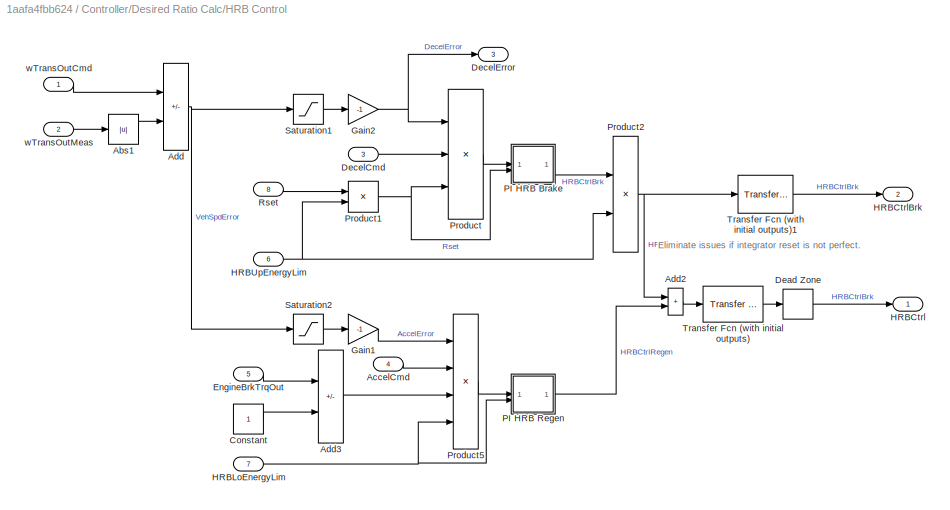
BLOCK [SubSystem] Controller/Desired Ratio Calc/HRB Control
BLOCK [Abs] Controller/Desired Ratio Calc/HRB Control/Abs1
  SaturateOnIntegerOverflow = off
  ZeroCross = off
BLOCK [Inport] Controller/Desired Ratio Calc/HRB Control/AccelCmd
  Port = 4
BLOCK [Sum] Controller/Desired Ratio Calc/HRB Control/Add
  IconShape = rectangular
  Inputs = +-
BLOCK [Sum] Controller/Desired Ratio Calc/HRB Control/Add2
  IconShape = rectangular
BLOCK [Sum] Controller/Desired Ratio Calc/HRB Control/Add3
  IconShape = rectangular
  Inputs = -+
BLOCK [Constant] Controller/Desired Ratio Calc/HRB Control/Constant
BLOCK [DeadZone] Controller/Desired Ratio Calc/HRB Control/Dead Zone
  LowerValue = -3e-3
  UpperValue = 3e-3
BLOCK [Inport] Controller/Desired Ratio Calc/HRB Control/DecelCmd
  Port = 3
BLOCK [Outport] Controller/Desired Ratio Calc/HRB Control/DecelError
  Port = 3
BLOCK [Inport] Controller/Desired Ratio Calc/HRB Control/EngineBrkTrqOut
  Port = 5
BLOCK [Gain] Controller/Desired Ratio Calc/HRB Control/Gain1
  Gain = -1
BLOCK [Gain] Controller/Desired Ratio Calc/HRB Control/Gain2
  Gain = -1
BLOCK [Outport] Controller/Desired Ratio Calc/HRB Control/HRBCtrl
BLOCK [Outport] Controller/Desired Ratio Calc/HRB Control/HRBCtrlBrk
  Port = 2
BLOCK [Inport] Controller/Desired Ratio Calc/HRB Control/HRBLoEnergyLim
  Port = 7
BLOCK [Inport] Controller/Desired Ratio Calc/HRB Control/HRBUpEnergyLim
  Port = 6
BLOCK [SubSystem] Controller/Desired Ratio Calc/HRB Control/PI HRB Brake
BLOCK [Gain] Controller/Desired Ratio Calc/HRB Control/PI HRB Brake/Gain
  Gain = 0.02*0.2
BLOCK [Gain] Controller/Desired Ratio Calc/HRB Control/PI HRB Brake/Gain3
  Gain = 0.002+0.0005
BLOCK [Integrator] Controller/Desired Ratio Calc/HRB Control/PI HRB Brake/Integrator
  ExternalReset = falling
BLOCK [Inport] Controller/Desired Ratio Calc/HRB Control/PI HRB Brake/Rset
  Port = 2
BLOCK [Sum] Controller/Desired Ratio Calc/HRB Control/PI HRB Brake/Sum
  Inputs = ++|
BLOCK [Outport] Controller/Desired Ratio Calc/HRB Control/PI HRB Brake/ctrl
BLOCK [Inport] Controller/Desired Ratio Calc/HRB Control/PI HRB Brake/error
BLOCK [SubSystem] Controller/Desired Ratio Calc/HRB Control/PI HRB Regen
BLOCK [Gain] Controller/Desired Ratio Calc/HRB Control/PI HRB Regen/Gain
  Gain = 0.01*0.2
BLOCK [Gain] Controller/Desired Ratio Calc/HRB Control/PI HRB Regen/Gain3
  Gain = 0.001
BLOCK [Integrator] Controller/Desired Ratio Calc/HRB Control/PI HRB Regen/Integrator
  ExternalReset = falling
BLOCK [Inport] Controller/Desired Ratio Calc/HRB Control/PI HRB Regen/Rset
  Port = 2
BLOCK [Sum] Controller/Desired Ratio Calc/HRB Control/PI HRB Regen/Sum
  Inputs = ++|
BLOCK [Outport] Controller/Desired Ratio Calc/HRB Control/PI HRB Regen/ctrl
BLOCK [Inport] Controller/Desired Ratio Calc/HRB Control/PI HRB Regen/error
BLOCK [Product] Controller/Desired Ratio Calc/HRB Control/Product
  Inputs = 3
BLOCK [Product] Controller/Desired Ratio Calc/HRB Control/Product1
BLOCK [Product] Controller/Desired Ratio Calc/HRB Control/Product2
BLOCK [Product] Controller/Desired Ratio Calc/HRB Control/Product5
  Inputs = 4
BLOCK [Inport] Controller/Desired Ratio Calc/HRB Control/Rset
  Port = 8
BLOCK [Saturate] Controller/Desired Ratio Calc/HRB Control/Saturation1
  LowerLimit = -inf
  UpperLimit = 0
  ZeroCross = off
BLOCK [Saturate] Controller/Desired Ratio Calc/HRB Control/Saturation2
  LowerLimit = 0
  UpperLimit = inf
  ZeroCross = off
BLOCK [Reference] Controller/Desired Ratio Calc/HRB Control/Transfer Fcn (with initial outputs)  REF=simulink_extras/Additional
Linear/Transfer Fcn
(with initial outputs)
  SourceBlock = simulink_extras/Additional\nLinear/Transfer Fcn\n(with initial outputs)
  SourceType = Transfer Function with Initial Outputs
BLOCK [Reference] Controller/Desired Ratio Calc/HRB Control/Transfer Fcn (with initial outputs)1  REF=simulink_extras/Additional
Linear/Transfer Fcn
(with initial outputs)
  SourceBlock = simulink_extras/Additional\nLinear/Transfer Fcn\n(with initial outputs)
  SourceType = Transfer Function with Initial Outputs
BLOCK [Inport] Controller/Desired Ratio Calc/HRB Control/wTransOutCmd
BLOCK [Inport] Controller/Desired Ratio Calc/HRB Control/wTransOutMeas
  Port = 2
BLOCK [SubSystem] Controller/Desired Ratio Calc/HRB Logic
BLOCK [Outport] Controller/Desired Ratio Calc/HRB Logic/AccelCmd ( 0 or 1)
  Port = 2
BLOCK [Fcn] Controller/Desired Ratio Calc/HRB Logic/Accum Press < LoLimit
  Expr = u(1)>11.5
BLOCK [Fcn] Controller/Desired Ratio Calc/HRB Logic/Accum Press < UpLimit
  Expr = u(1)<44.5
BLOCK [Fcn] Controller/Desired Ratio Calc/HRB Logic/Accum Press > UpLimit
  Expr = u(1)>=43
BLOCK [Inport] Controller/Desired Ratio Calc/HRB Logic/AccumPress (MPa)
BLOCK [Outport] Controller/Desired Ratio Calc/HRB Logic/AccumPressInLoLim (0 or 1)
  Port = 5
BLOCK [Outport] Controller/Desired Ratio Calc/HRB Logic/AccumPressInUpLim (0 or 1)
  Port = 4
BLOCK [Outport] Controller/Desired Ratio Calc/HRB Logic/AccumPressOutUpLim (0 or 1)
  Port = 7
BLOCK [Fcn] Controller/Desired Ratio Calc/HRB Logic/Check Accel
  Expr = u(1)>1e-3
BLOCK [Fcn] Controller/Desired Ratio Calc/HRB Logic/Check Decel
  Expr = u(1)<1e-3
BLOCK [Fcn] Controller/Desired Ratio Calc/HRB Logic/Check EngBrkTrq
  Expr = u(1)<-400
BLOCK [Inport] Controller/Desired Ratio Calc/HRB Logic/CmdSpdRate
  Port = 2
BLOCK [DataTypeConversion] Controller/Desired Ratio Calc/HRB Logic/Data Type Conversion
  OutDataTypeStr = double
  RndMeth = Floor
  SaturateOnIntegerOverflow = off
BLOCK [DataTypeConversion] Controller/Desired Ratio Calc/HRB Logic/Data Type Conversion1
  OutDataTypeStr = double
  RndMeth = Floor
  SaturateOnIntegerOverflow = off
BLOCK [DataTypeConversion] Controller/Desired Ratio Calc/HRB Logic/Data Type Conversion2
  OutDataTypeStr = double
  RndMeth = Floor
  SaturateOnIntegerOverflow = off
BLOCK [DataTypeConversion] Controller/Desired Ratio Calc/HRB Logic/Data Type Conversion3
  OutDataTypeStr = double
  RndMeth = Floor
  SaturateOnIntegerOverflow = off
BLOCK [DataTypeConversion] Controller/Desired Ratio Calc/HRB Logic/Data Type Conversion4
  OutDataTypeStr = double
  RndMeth = Floor
  SaturateOnIntegerOverflow = off
BLOCK [DataTypeConversion] Controller/Desired Ratio Calc/HRB Logic/Data Type Conversion5
  OutDataTypeStr = double
  RndMeth = Floor
  SaturateOnIntegerOverflow = off
BLOCK [DataTypeConversion] Controller/Desired Ratio Calc/HRB Logic/Data Type Conversion6
  OutDataTypeStr = double
  RndMeth = Floor
  SaturateOnIntegerOverflow = off
BLOCK [DataTypeConversion] Controller/Desired Ratio Calc/HRB Logic/Data Type Conversion7
  OutDataTypeStr = double
  RndMeth = Floor
  SaturateOnIntegerOverflow = off
BLOCK [Outport] Controller/Desired Ratio Calc/HRB Logic/DecelCmd ( 0 or 1)
BLOCK [Lookup_n-D] Controller/Desired Ratio Calc/HRB Logic/Eng Brake Trq Threshhold
  BreakpointsForDimension1 = [-3 -2 -1 -0.5 0 1]
  InputPortMap = u0
  InternalRulePriority = Speed
  NumberOfTableDimensions = 1
  RndMeth = Simplest
  Table = [-450 -450 -225 -113 0 0]*0.6
BLOCK [Outport] Controller/Desired Ratio Calc/HRB Logic/EngBrkTrqOut-400 (0 or 1)
  Port = 3
BLOCK [Outport] Controller/Desired Ratio Calc/HRB Logic/EngBrkTrqOutLim (0 or 1)
  Port = 6
BLOCK [Inport] Controller/Desired Ratio Calc/HRB Logic/EngTrq (Nm)
  Port = 3
BLOCK [Fcn] Controller/Desired Ratio Calc/HRB Logic/Fcn1
  Expr = u(1)>=0.0099
BLOCK [Inport] Controller/Desired Ratio Calc/HRB Logic/HRBCtrlBrk
  Port = 4
BLOCK [Outport] Controller/Desired Ratio Calc/HRB Logic/HRBPwrLim (0 or 1)
  Port = 8
BLOCK [RelationalOperator] Controller/Desired Ratio Calc/HRB Logic/Relational Operator
  InputSameDT = off
  Operator = <
  OutDataTypeStr = boolean
  ZeroCross = off
BLOCK [Outport] Controller/Desired Ratio Calc/HRBCtrl (-)
  Port = 3
BLOCK [SubSystem] Controller/Desired Ratio Calc/MB Control
BLOCK [Inport] Controller/Desired Ratio Calc/MB Control/AccumLimUp
  Port = 4
BLOCK [Sum] Controller/Desired Ratio Calc/MB Control/Add1
  IconShape = rectangular
  Inputs = +++
BLOCK [Reference] Controller/Desired Ratio Calc/MB Control/Compare To Constant  REF=simulink/Logic and Bit
Operations/Compare
To Constant
  SourceBlock = simulink/Logic and Bit\nOperations/Compare\nTo Constant
  SourceType = Compare To Constant
BLOCK [DataTypeConversion] Controller/Desired Ratio Calc/MB Control/Data Type Conversion
  OutDataTypeStr = double
  RndMeth = Floor
  SaturateOnIntegerOverflow = off
BLOCK [Inport] Controller/Desired Ratio Calc/MB Control/Decel Error
BLOCK [Inport] Controller/Desired Ratio Calc/MB Control/HRBPowerLim
  Port = 5
BLOCK [Outport] Controller/Desired Ratio Calc/MB Control/Out1
BLOCK [SubSystem] Controller/Desired Ratio Calc/MB Control/PI MB No HRB
BLOCK [Gain] Controller/Desired Ratio Calc/MB Control/PI MB No HRB/Gain
  Gain = 0.01
BLOCK [Gain] Controller/Desired Ratio Calc/MB Control/PI MB No HRB/Gain3
  Gain = 0.002
BLOCK [Integrator] Controller/Desired Ratio Calc/MB Control/PI MB No HRB/Integrator
  ExternalReset = falling
BLOCK [Inport] Controller/Desired Ratio Calc/MB Control/PI MB No HRB/Rset
  Port = 2
BLOCK [Sum] Controller/Desired Ratio Calc/MB Control/PI MB No HRB/Sum
  Inputs = ++|
BLOCK [Outport] Controller/Desired Ratio Calc/MB Control/PI MB No HRB/ctrl
BLOCK [Inport] Controller/Desired Ratio Calc/MB Control/PI MB No HRB/error
BLOCK [SubSystem] Controller/Desired Ratio Calc/MB Control/PI MB with MRB
BLOCK [Gain] Controller/Desired Ratio Calc/MB Control/PI MB with MRB/Gain
  Gain = 0.005
BLOCK [Gain] Controller/Desired Ratio Calc/MB Control/PI MB with MRB/Gain3
  Gain = 0.002
BLOCK [Integrator] Controller/Desired Ratio Calc/MB Control/PI MB with MRB/Integrator
  ExternalReset = falling
BLOCK [Inport] Controller/Desired Ratio Calc/MB Control/PI MB with MRB/Rset
  Port = 2
BLOCK [Sum] Controller/Desired Ratio Calc/MB Control/PI MB with MRB/Sum
  Inputs = ++|
BLOCK [Outport] Controller/Desired Ratio Calc/MB Control/PI MB with MRB/ctrl
BLOCK [Inport] Controller/Desired Ratio Calc/MB Control/PI MB with MRB/error
BLOCK [Product] Controller/Desired Ratio Calc/MB Control/Product3
  Inputs = 3
BLOCK [Product] Controller/Desired Ratio Calc/MB Control/Product4
BLOCK [Inport] Controller/Desired Ratio Calc/MB Control/Rset
  Port = 3
BLOCK [Inport] Controller/Desired Ratio Calc/MB Control/wTransOutCmd
  Port = 2
BLOCK [Outport] Controller/Desired Ratio Calc/MBCtrl (-)
  Port = 4
BLOCK [Outport] Controller/Desired Ratio Calc/Ratio (-)
BLOCK [Saturate] Controller/Desired Ratio Calc/Saturation
  LowerLimit = 0.5
  UpperLimit = 2500
BLOCK [Gain] Controller/Desired Ratio Calc/Scale
  Gain = HMPST.Veh.TopSpeed/100
BLOCK [TransferFcn] Controller/Desired Ratio Calc/Transfer Fcn
  Denominator = [0.01 1]
  Numerator = [0.5 0]
BLOCK [Reference] Controller/Desired Ratio Calc/Transfer Fcn (with initial outputs)2  REF=simulink_extras/Additional
Linear/Transfer Fcn
(with initial outputs)
  SourceBlock = simulink_extras/Additional\nLinear/Transfer Fcn\n(with initial outputs)
  SourceType = Transfer Function with Initial Outputs
BLOCK [TransferFcn] Controller/Desired Ratio Calc/Transfer Fcn1
  Denominator = [0.01 1]
BLOCK [SubSystem] Controller/Desired Ratio Calc/VehSpdDir
BLOCK [Constant] Controller/Desired Ratio Calc/VehSpdDir/Constant1
BLOCK [Constant] Controller/Desired Ratio Calc/VehSpdDir/Constant2
  Value = -1
BLOCK [Constant] Controller/Desired Ratio Calc/VehSpdDir/Constant3
  Value = 0
BLOCK [Gain] Controller/Desired Ratio Calc/VehSpdDir/Gain
  Gain = -1
  NameLocation = left
BLOCK [Switch] Controller/Desired Ratio Calc/VehSpdDir/Switch
  Criteria = u2 > Threshold
  InputSameDT = off
  SaturateOnIntegerOverflow = off
  Threshold = 0.001
BLOCK [Switch] Controller/Desired Ratio Calc/VehSpdDir/Switch1
  Criteria = u2 > Threshold
  InputSameDT = off
  SaturateOnIntegerOverflow = off
  Threshold = 0.001
BLOCK [Inport] Controller/Desired Ratio Calc/VehSpdDir/u
BLOCK [Outport] Controller/Desired Ratio Calc/VehSpdDir/u_dir
BLOCK [Gain] Controller/Desired Ratio Calc/WRPM to ORPM
  Gain = HMPST.OutputTransferGearPair.Ratio*HMPST.Differential.Ratio*HMPST.FinalDrive.Ratio
BLOCK [Gain] Controller/Desired Ratio Calc/km//h to m//s
  Gain = 1/3.6
BLOCK [Gain] Controller/Desired Ratio Calc/m//s to RPM
  Gain = 1/HMPST.Tire.Rad*30/pi
BLOCK [Outport] Controller/Eng
  Port = 2
BLOCK [Gain] Controller/Gain
  Gain = pi/30/1000
BLOCK [Product] Controller/Product
BLOCK [Terminator] Controller/Terminator
BLOCK [TransferFcn] Controller/Transfer Fcn
  Denominator = [0.1 1]
BLOCK [Inport] Controller/mCVT
  Port = 2
BLOCK [Inport] Controller/mEngine
  Port = 3
BLOCK [Inport] Controller/vSpdCmd
BLOCK [SubSystem] Driveline
BLOCK [SubSystem] Driveline/Compliance FL
  NameLocation = left
BLOCK [PMIOPort] Driveline/Compliance FL/C
  Port = 2
  Side = Left
BLOCK [Reference] Driveline/Compliance FL/Damper  REF=fl_lib/Mechanical/Rotational Elements/Rotational Damper
  NameLocation = top
  SourceBlock = fl_lib/Mechanical/Rotational Elements/Rotational Damper
  SourceType = Rotational Damper
BLOCK [PMIOPort] Driveline/Compliance FL/R
  NameLocation = top
  Side = Right
BLOCK [Reference] Driveline/Compliance FL/Spring  REF=fl_lib/Mechanical/Rotational Elements/Rotational Spring
  SourceBlock = fl_lib/Mechanical/Rotational Elements/Rotational Spring
  SourceType = Rotational Spring
BLOCK [SubSystem] Driveline/Compliance FR
  NameLocation = left
BLOCK [PMIOPort] Driveline/Compliance FR/C
  Port = 2
  Side = Left
BLOCK [Reference] Driveline/Compliance FR/Damper  REF=fl_lib/Mechanical/Rotational Elements/Rotational Damper
  NameLocation = top
  SourceBlock = fl_lib/Mechanical/Rotational Elements/Rotational Damper
  SourceType = Rotational Damper
BLOCK [PMIOPort] Driveline/Compliance FR/R
  NameLocation = top
  Side = Right
BLOCK [Reference] Driveline/Compliance FR/Spring  REF=fl_lib/Mechanical/Rotational Elements/Rotational Spring
  SourceBlock = fl_lib/Mechanical/Rotational Elements/Rotational Spring
  SourceType = Rotational Spring
BLOCK [SubSystem] Driveline/Compliance RL
  NameLocation = right
BLOCK [PMIOPort] Driveline/Compliance RL/C
  Port = 2
  Side = Left
BLOCK [Reference] Driveline/Compliance RL/Damper  REF=fl_lib/Mechanical/Rotational Elements/Rotational Damper
  NameLocation = top
  SourceBlock = fl_lib/Mechanical/Rotational Elements/Rotational Damper
  SourceType = Rotational Damper
BLOCK [PMIOPort] Driveline/Compliance RL/R
  NameLocation = top
  Side = Right
BLOCK [Reference] Driveline/Compliance RL/Spring  REF=fl_lib/Mechanical/Rotational Elements/Rotational Spring
  SourceBlock = fl_lib/Mechanical/Rotational Elements/Rotational Spring
  SourceType = Rotational Spring
BLOCK [SubSystem] Driveline/Compliance RR
  NameLocation = right
BLOCK [PMIOPort] Driveline/Compliance RR/C
  Port = 2
  Side = Left
BLOCK [Reference] Driveline/Compliance RR/Damper  REF=fl_lib/Mechanical/Rotational Elements/Rotational Damper
  NameLocation = top
  SourceBlock = fl_lib/Mechanical/Rotational Elements/Rotational Damper
  SourceType = Rotational Damper
BLOCK [PMIOPort] Driveline/Compliance RR/R
  NameLocation = top
  Side = Right
BLOCK [Reference] Driveline/Compliance RR/Spring  REF=fl_lib/Mechanical/Rotational Elements/Rotational Spring
  SourceBlock = fl_lib/Mechanical/Rotational Elements/Rotational Spring
  SourceType = Rotational Spring
BLOCK [Reference] Driveline/Damper  REF=fl_lib/Mechanical/Rotational Elements/Rotational Damper
  NameLocation = top
  SourceBlock = fl_lib/Mechanical/Rotational Elements/Rotational Damper
  SourceType = Rotational Damper
BLOCK [Reference] Driveline/Differential Front  REF=sdl_lib/Gears/Differential
  SourceBlock = sdl_lib/Gears/Differential
  SourceType = Differential
BLOCK [Reference] Driveline/Differential Rear  REF=sdl_lib/Gears/Differential
  SourceBlock = sdl_lib/Gears/Differential
  SourceType = Differential
BLOCK [PMIOPort] Driveline/FL
  NameLocation = left
  Port = 3
  Side = Left
BLOCK [PMIOPort] Driveline/FR
  NameLocation = left
  Port = 6
  Side = Right
BLOCK [Reference] Driveline/Gear Output Transfer  REF=sdl_lib/Gears/Simple Gear
  SourceBlock = sdl_lib/Gears/Simple Gear
  SourceType = Simple Gear
BLOCK [Reference] Driveline/Gear Sun FR  REF=sdl_lib/Gears/Simple Gear
  NameLocation = left
  SourceBlock = sdl_lib/Gears/Simple Gear
  SourceType = Simple Gear
BLOCK [Reference] Driveline/Gear Sun LF  REF=sdl_lib/Gears/Simple Gear
  NameLocation = left
  SourceBlock = sdl_lib/Gears/Simple Gear
  SourceType = Simple Gear
BLOCK [Reference] Driveline/Gear Sun LR  REF=sdl_lib/Gears/Simple Gear
  NameLocation = right
  SourceBlock = sdl_lib/Gears/Simple Gear
  SourceType = Simple Gear
BLOCK [Reference] Driveline/Gear Sun RR  REF=sdl_lib/Gears/Simple Gear
  NameLocation = right
  SourceBlock = sdl_lib/Gears/Simple Gear
  SourceType = Simple Gear
BLOCK [Reference] Driveline/Inertia Driveshaft FL  REF=fl_lib/Mechanical/Rotational Elements/Inertia
  NameLocation = top
  SourceBlock = fl_lib/Mechanical/Rotational Elements/Inertia
  SourceType = Inertia
BLOCK [Reference] Driveline/Inertia Driveshaft FR  REF=fl_lib/Mechanical/Rotational Elements/Inertia
  SourceBlock = fl_lib/Mechanical/Rotational Elements/Inertia
  SourceType = Inertia
BLOCK [Reference] Driveline/Inertia Driveshaft Front  REF=fl_lib/Mechanical/Rotational Elements/Inertia
  SourceBlock = fl_lib/Mechanical/Rotational Elements/Inertia
  SourceType = Inertia
BLOCK [Reference] Driveline/Inertia Driveshaft RL  REF=fl_lib/Mechanical/Rotational Elements/Inertia
  SourceBlock = fl_lib/Mechanical/Rotational Elements/Inertia
  SourceType = Inertia
BLOCK [Reference] Driveline/Inertia Driveshaft RR  REF=fl_lib/Mechanical/Rotational Elements/Inertia
  NameLocation = top
  SourceBlock = fl_lib/Mechanical/Rotational Elements/Inertia
  SourceType = Inertia
BLOCK [Reference] Driveline/Inertia Driveshaft Rear  REF=fl_lib/Mechanical/Rotational Elements/Inertia
  SourceBlock = fl_lib/Mechanical/Rotational Elements/Inertia
  SourceType = Inertia
BLOCK [PMIOPort] Driveline/RL
  NameLocation = right
  Side = Left
BLOCK [PMIOPort] Driveline/RR
  NameLocation = right
  Port = 4
  Side = Right
BLOCK [Reference] Driveline/Spring  REF=fl_lib/Mechanical/Rotational Elements/Rotational Spring
  SourceBlock = fl_lib/Mechanical/Rotational Elements/Rotational Spring
  SourceType = Rotational Spring
BLOCK [PMIOPort] Driveline/Trans
  Port = 5
  Side = Right
BLOCK [PMIOPort] Driveline/TransA
  Port = 2
  Side = Left
BLOCK [SubSystem] Engine Droop
  VariantControl = Droop
BLOCK [BusCreator] Engine Droop/Bus Creator
  DisplayOption = bar
  InheritFromInputs = on
  Inputs = 2
BLOCK [BusSelector] Engine Droop/Bus Selector
  OutputSignals = CmdEngSpd(RPM)
BLOCK [BusSelector] Engine Droop/Bus Selector1
  OutputSignals = tEngMax
BLOCK [Constant] Engine Droop/Constant
  Value = 0.2
BLOCK [Inport] Engine Droop/EngCtrl
BLOCK [Outport] Engine Droop/EngFbk
BLOCK [Reference] Engine Droop/Engine Management  REF=engine_mgmt_lib/Engine  (lib defined in slx_05d925da4168, slx_bb3a41218280, +1 more)
Management
  SourceBlock = engine_mgmt_lib/Engine\nManagement
BLOCK [Reference] Engine Droop/Generic Engine  REF=sdl_lib/Engines & Motors/Generic Engine
  SourceBlock = sdl_lib/Engines & Motors/Generic Engine
  SourceType = Generic Engine
BLOCK [Reference] Engine Droop/Mechanical Rotational Reference  REF=fl_lib/Mechanical/Rotational Elements/Mechanical
Rotational Reference
  SourceBlock = fl_lib/Mechanical/Rotational Elements/Mechanical\nRotational Reference
  SourceType = Mechanical\nRotational Reference
BLOCK [Outport] Engine Droop/Out Bus Element
  Port = 2
BLOCK [Outport] Engine Droop/Out Bus Element1
  Port = 2
BLOCK [Outport] Engine Droop/Out Bus Element2
  Port = 2
BLOCK [Outport] Engine Droop/Out Bus Element3
  Port = 2
BLOCK [Outport] Engine Droop/Out Bus Element4
  Port = 2
BLOCK [PMIOPort] Engine Droop/Shaft
  Side = Right
BLOCK [Reference] Engine Droop/Simulink-PS Converter  REF=nesl_utility/Simulink-PS
Converter
  SourceBlock = nesl_utility/Simulink-PS\nConverter
  SourceType = Simulink-PS\nConverter
BLOCK [SubSystem] Engine Droop/Speed Sensor
  NameLocation = right
BLOCK [Reference] Engine Droop/Speed Sensor/MRRef  REF=fl_lib/Mechanical/Rotational Elements/Mechanical
Rotational Reference
  NameLocation = top
  SourceBlock = fl_lib/Mechanical/Rotational Elements/Mechanical\nRotational Reference
  SourceType = Mechanical\nRotational Reference
BLOCK [Reference] Engine Droop/Speed Sensor/Motion Sensor  REF=fl_lib/Mechanical/Mechanical Sensors/Ideal Rotational
Motion Sensor
  SourceBlock = fl_lib/Mechanical/Mechanical Sensors/Ideal Rotational\nMotion Sensor
  SourceType = Ideal Rotational\nMotion Sensor
BLOCK [Reference] Engine Droop/Speed Sensor/Press A3  REF=nesl_utility/PS-Simulink
Converter
  SourceBlock = nesl_utility/PS-Simulink\nConverter
  SourceType = PS-Simulink\nConverter
BLOCK [PMIOPort] Engine Droop/Speed Sensor/R
  NameLocation = top
  Side = Left
BLOCK [TransferFcn] Engine Droop/Speed Sensor/Transfer Fcn
  Denominator = [0.1 1]
BLOCK [Outport] Engine Droop/Speed Sensor/rpm
BLOCK [Terminator] Engine Droop/Terminator1
BLOCK [SubSystem] Engine Droop/Torque Sensor
  PortSchema = {"entries":[{"content":{"sides":[{"content":{"connectorIds":["LConn1"]},"type":"ConnectorPlacement.EquallySpacedRectSide","uuid":"5a764f16-cafe-4867-b916-6b4e7e02daa5"},{"content":{"connectorIds":["RConn1"],"side":"RIGHT"},"type":"ConnectorPlacement.EquallySpacedRectSide","uuid":"8ceee8ac-f09f-4a1d-836f-79964ce3b2d4"},{"content":{"connectorIds":["Out1"],"side":"TOP"},"type":"ConnectorPlacement.Equ...<+251ch>
BLOCK [PMIOPort] Engine Droop/Torque Sensor/C
  Port = 2
  Side = Right
BLOCK [Reference] Engine Droop/Torque Sensor/PS-Simulink Converter  REF=nesl_utility/PS-Simulink
Converter
  SourceBlock = nesl_utility/PS-Simulink\nConverter
  SourceType = PS-Simulink\nConverter
BLOCK [PMIOPort] Engine Droop/Torque Sensor/R
  Side = Left
BLOCK [Reference] Engine Droop/Torque Sensor/Torque Sensor  REF=fl_lib/Mechanical/Mechanical Sensors/Ideal Torque Sensor
  SourceBlock = fl_lib/Mechanical/Mechanical Sensors/Ideal Torque Sensor
  SourceType = Ideal Torque Sensor
BLOCK [Outport] Engine Droop/Torque Sensor/m
BLOCK [SubSystem] Engine Generic
  VariantControl = Generic
BLOCK [Lookup_n-D] Engine Generic/Acc to I Gain
  BreakpointsForDimension1 = [-2 -1 0 1 2]
  InputPortMap = u0
  InternalRulePriority = Speed
  NumberOfTableDimensions = 1
  RndMeth = Simplest
  Table = [25 25 15 15 15]
BLOCK [Lookup_n-D] Engine Generic/Acc to P Gain
  BreakpointsForDimension1 = [-2 -1 0 1 2]
  InputPortMap = u0
  InternalRulePriority = Speed
  NumberOfTableDimensions = 1
  RndMeth = Simplest
  Table = [50 50 15 15 15]
BLOCK [Sum] Engine Generic/Add
  IconShape = rectangular
  Inputs = +-
BLOCK [BusCreator] Engine Generic/Bus Creator
  DisplayOption = bar
  InheritFromInputs = on
  Inputs = 2
BLOCK [BusSelector] Engine Generic/Bus Selector
  OutputSignals = CmdEngSpd(RPM),CmdSpdRate
BLOCK [Inport] Engine Generic/EngCtrl
BLOCK [Outport] Engine Generic/EngFbk
BLOCK [Reference] Engine Generic/Generic Engine  REF=sdl_lib/Engines & Motors/Generic Engine
  SourceBlock = sdl_lib/Engines & Motors/Generic Engine
  SourceType = Generic Engine
BLOCK [Reference] Engine Generic/Mechanical Rotational Reference  REF=fl_lib/Mechanical/Rotational Elements/Mechanical
Rotational Reference
  SourceBlock = fl_lib/Mechanical/Rotational Elements/Mechanical\nRotational Reference
  SourceType = Mechanical\nRotational Reference
BLOCK [Outport] Engine Generic/Out Bus Element
  Port = 2
BLOCK [Outport] Engine Generic/Out Bus Element1
  Port = 2
BLOCK [Outport] Engine Generic/Out Bus Element2
  Port = 2
BLOCK [Outport] Engine Generic/Out Bus Element3
  Port = 2
BLOCK [Outport] Engine Generic/Out Bus Element4
  Port = 2
BLOCK [Reference] Engine Generic/PID Controller  REF=slpidlib/PID Controller
  SourceBlock = slpidlib/PID Controller
  SourceType = PID 1dof
BLOCK [PMIOPort] Engine Generic/Shaft
  Side = Right
BLOCK [Reference] Engine Generic/Simulink-PS Converter  REF=nesl_utility/Simulink-PS
Converter
  SourceBlock = nesl_utility/Simulink-PS\nConverter
  SourceType = Simulink-PS\nConverter
BLOCK [SubSystem] Engine Generic/Speed Sensor
  NameLocation = right
BLOCK [Reference] Engine Generic/Speed Sensor/Ideal Rotational Motion Sensor1  REF=fl_lib/Mechanical/Mechanical Sensors/Ideal Rotational
Motion Sensor
  SourceBlock = fl_lib/Mechanical/Mechanical Sensors/Ideal Rotational\nMotion Sensor
  SourceType = Ideal Rotational\nMotion Sensor
BLOCK [Reference] Engine Generic/Speed Sensor/Mechanical Rotational Reference1  REF=fl_lib/Mechanical/Rotational Elements/Mechanical
Rotational Reference
  SourceBlock = fl_lib/Mechanical/Rotational Elements/Mechanical\nRotational Reference
  SourceType = Mechanical\nRotational Reference
BLOCK [Reference] Engine Generic/Speed Sensor/Press A3  REF=nesl_utility/PS-Simulink
Converter
  SourceBlock = nesl_utility/PS-Simulink\nConverter
  SourceType = PS-Simulink\nConverter
BLOCK [PMIOPort] Engine Generic/Speed Sensor/R
  NameLocation = top
  Side = Left
BLOCK [TransferFcn] Engine Generic/Speed Sensor/Transfer Fcn
  Denominator = [0.1 1]
BLOCK [Outport] Engine Generic/Speed Sensor/w (rpm)
BLOCK [SubSystem] Engine Generic/Subsystem
  PortSchema = {"entries":[{"content":{"sides":[{"content":{"connectorIds":["LConn1"]},"type":"ConnectorPlacement.EquallySpacedRectSide","uuid":"5a764f16-cafe-4867-b916-6b4e7e02daa5"},{"content":{"connectorIds":["RConn1"],"side":"RIGHT"},"type":"ConnectorPlacement.EquallySpacedRectSide","uuid":"8ceee8ac-f09f-4a1d-836f-79964ce3b2d4"},{"content":{"connectorIds":["Out1"],"side":"TOP"},"type":"ConnectorPlacement.Equ...<+251ch>
BLOCK [PMIOPort] Engine Generic/Subsystem/C
  Port = 2
  Side = Right
BLOCK [Reference] Engine Generic/Subsystem/Ideal Torque Sensor  REF=fl_lib/Mechanical/Mechanical Sensors/Ideal Torque Sensor
  SourceBlock = fl_lib/Mechanical/Mechanical Sensors/Ideal Torque Sensor
  SourceType = Ideal Torque Sensor
BLOCK [Reference] Engine Generic/Subsystem/PS-Simulink Converter  REF=nesl_utility/PS-Simulink
Converter
  SourceBlock = nesl_utility/PS-Simulink\nConverter
  SourceType = PS-Simulink\nConverter
BLOCK [PMIOPort] Engine Generic/Subsystem/R
  Side = Left
BLOCK [Outport] Engine Generic/Subsystem/m
BLOCK [Reference] Engine Generic/Transfer Fcn (with initial outputs)  REF=simulink_extras/Additional
Linear/Transfer Fcn
(with initial outputs)
  SourceBlock = simulink_extras/Additional\nLinear/Transfer Fcn\n(with initial outputs)
  SourceType = Transfer Function with Initial Outputs
BLOCK [Lookup_n-D] Engine Generic/Trq Lim Upper
  BreakpointsForDimension1 = HMPST.Eng.MaxTorq.SpdVec
  ExtrapMethod = Clip
  InputPortMap = u0
  InternalRulePriority = Speed
  NumberOfTableDimensions = 1
  RndMeth = Simplest
  Table = HMPST.Eng.MaxTorq.TrqVec
BLOCK [SubSystem] Hydrostatic
  VariantControl = Hydrostatic
BLOCK [Reference] Hydrostatic/Bearing Friction  REF=sdl_lib/Couplings & Drives/Springs & Dampers/Rotational Damper
  NameLocation = top
  SourceBlock = sdl_lib/Couplings & Drives/Springs & Dampers/Rotational Damper
  SourceType = Rotational Damper
BLOCK [Reference] Hydrostatic/Brake Out  REF=cvt_components_lib/Brake  (lib defined in slx_8b8a1d3bcfde, slx_9261503687ac, +1 more)
  NameLocation = right
  SourceBlock = cvt_components_lib/Brake
  SourceType = Disk Brake
BLOCK [Inport] Hydrostatic/BusElementIn
BLOCK [Inport] Hydrostatic/BusElementIn1
BLOCK [Inport] Hydrostatic/BusElementIn2
BLOCK [Constant] Hydrostatic/Constant
  Value = 0
BLOCK [Constant] Hydrostatic/Constant1
  Value = HMPST.Eng.wTarget/HMPST.HydroUnit.Pump.SpeedLimit
BLOCK [Constant] Hydrostatic/Constant2
  Value = HMPST.HydroUnit.Motor.Disp/HMPST.HydroUnit.Pump.Disp
BLOCK [PMIOPort] Hydrostatic/D
  NameLocation = top
  Port = 2
  Side = Right
BLOCK [PMIOPort] Hydrostatic/E
  Side = Left
BLOCK [Gain] Hydrostatic/Gain
  Gain = -1
BLOCK [Reference] Hydrostatic/Gears HS In  REF=$bdroot/CVT Power Split Hydromechanical/Gears
HS In
  SourceBlock = $bdroot/CVT Power Split Hydromechanical/Gears\nHS In
BLOCK [Reference] Hydrostatic/Hydrostatic  REF=$bdroot/CVT Power Split Hydromechanical/Hydrostatic
  NameLocation = top
  SourceBlock = $bdroot/CVT Power Split Hydromechanical/Hydrostatic
  SourceType = Hydrostatic Transmission
BLOCK [Reference] Hydrostatic/Mechanical Rotational Reference  REF=fl_lib/Mechanical/Rotational Elements/Mechanical
Rotational Reference
  SourceBlock = fl_lib/Mechanical/Rotational Elements/Mechanical\nRotational Reference
  SourceType = Mechanical\nRotational Reference
BLOCK [Outport] Hydrostatic/Out Bus Element
BLOCK [Outport] Hydrostatic/Out Bus Element11
  NameLocation = top
BLOCK [Outport] Hydrostatic/Out Bus Element12
BLOCK [Product] Hydrostatic/Product
BLOCK [Product] Hydrostatic/Product1
  Inputs = 3
BLOCK [Reference] Hydrostatic/Sensor wIn  REF=$bdroot/CVT Abstract/Sensor wIn
  NameLocation = top
  SourceBlock = $bdroot/CVT Abstract/Sensor wIn
  SourceType = SubSystem
BLOCK [Reference] Hydrostatic/Sensor wOut  REF=$bdroot/CVT Abstract/Sensor wOut
  NameLocation = top
  SourceBlock = $bdroot/CVT Abstract/Sensor wOut
  SourceType = SubSystem
BLOCK [SubSystem] Tires and Body 1D
  NameLocation = top
  PortSchema = {"entries":[{"content":{"sides":[{"content":{"connectorIds":["LConn1","LConn2"]},"type":"ConnectorPlacement.EquallySpacedRectSide","uuid":"f6e4eca3-fb02-4523-87a7-c8328825f67f"},{"content":{"connectorIds":["RConn1","RConn2"],"side":"RIGHT"},"type":"ConnectorPlacement.EquallySpacedRectSide","uuid":"a01e7d42-3992-448e-add1-f2755d8f064c"},{"content":{"connectorIds":["Out1"],"side":"TOP"},"type":"Conn...<+395ch>
BLOCK [PMIOPort] Tires and Body 1D/FL
  NameLocation = left
  Side = Left
BLOCK [PMIOPort] Tires and Body 1D/FR
  NameLocation = left
  Port = 3
  Side = Right
BLOCK [Reference] Tires and Body 1D/PS-Simulink Converter  REF=nesl_utility/PS-Simulink
Converter
  SourceBlock = nesl_utility/PS-Simulink\nConverter
  SourceType = PS-Simulink\nConverter
BLOCK [PMIOPort] Tires and Body 1D/RL
  NameLocation = right
  Port = 2
  Side = Left
BLOCK [PMIOPort] Tires and Body 1D/RR
  NameLocation = right
  Port = 4
  Side = Right
BLOCK [Reference] Tires and Body 1D/Tire FL  REF=sdl_lib/Tires & Vehicles/Tire (Magic Formula)
  NameLocation = left
  SourceBlock = sdl_lib/Tires & Vehicles/Tire (Magic Formula)
  SourceType = Tire (Magic Formula)
BLOCK [Reference] Tires and Body 1D/Tire FR  REF=sdl_lib/Tires & Vehicles/Tire (Magic Formula)
  NameLocation = left
  SourceBlock = sdl_lib/Tires & Vehicles/Tire (Magic Formula)
  SourceType = Tire (Magic Formula)
BLOCK [Reference] Tires and Body 1D/Tire RL  REF=sdl_lib/Tires & Vehicles/Tire (Magic Formula)
  NameLocation = right
  SourceBlock = sdl_lib/Tires & Vehicles/Tire (Magic Formula)
  SourceType = Tire (Magic Formula)
BLOCK [Reference] Tires and Body 1D/Tire RR  REF=sdl_lib/Tires & Vehicles/Tire (Magic Formula)
  NameLocation = right
  SourceBlock = sdl_lib/Tires & Vehicles/Tire (Magic Formula)
  SourceType = Tire (Magic Formula)
BLOCK [Reference] Tires and Body 1D/Vehicle Body  REF=sdl_lib/Tires & Vehicles/Vehicle Body
  NameLocation = right
  SourceBlock = sdl_lib/Tires & Vehicles/Vehicle Body
  SourceType = Vehicle Body
BLOCK [Outport] Tires and Body 1D/v
ANNOTATION Controller/Desired Ratio Calc/HRB Control: Eliminate issues if integrator reset is not perfect.
ANNOTATION Controller/Desired Ratio Calc/HRB Logic: 1. When deceleration rate is low the controller behavior should be very close to coasting the vehicle. 2. Deceleration of 1m/s^2 achivable by secondary regen braking device only. 3. Deceleration of 2m/s^2 achivable by combination of primary mechanical braking and secondary regen braking. 4. Regen braking and mechanical braking can be coordinated. In the following scenariors mechanical braking shou...<+538ch>
ANNOTATION Hydrostatic: Convert transmission ratio to swash plate ratio
LINE CVT Abstract/BusElementIn1:1 -> CVT Abstract/Product:1
LINE CVT Abstract/BusElementIn2:1 -> CVT Abstract/Product:2
LINE CVT Abstract/Constant:1 -> CVT Abstract/Out Bus Element12:1
LINE CVT Abstract/Product:1 -> CVT Abstract/Simulink-PS Converter:1
LINE CVT Abstract/Sensor wIn/PS-Simulink Converter:1 -> CVT Abstract/Sensor wIn/w:1
LINE CVT Abstract/Sensor wIn:1 -> CVT Abstract/Out Bus Element:1
LINE CVT Abstract/Sensor wOut/PS-Simulink Converter:1 -> CVT Abstract/Sensor wOut/w:1
LINE CVT Abstract/Sensor wOut:1 -> CVT Abstract/Out Bus Element11:1
LINE CVT Electrical/BusElementIn1:1 -> CVT Electrical/Product2:1
LINE CVT Electrical/BusElementIn2:1 -> CVT Electrical/Product2:2
LINE CVT Electrical/Constant:1 -> CVT Electrical/Out Bus Element12:1
LINE CVT Electrical/Control/Control/Integrator:1 -> CVT Electrical/Control/Control/Sum1:1
LINE CVT Electrical/Control/Control/Ki:1 -> CVT Electrical/Control/Control/Integrator:1
LINE CVT Electrical/Control/Control/Kp:1 -> CVT Electrical/Control/Control/Sum1:2
LINE CVT Electrical/Control/Control/Sum1:1 -> CVT Electrical/Control/Control/Trq:1
LINE CVT Electrical/Control/Control/Sum:1 -> CVT Electrical/Control/Control/Transfer Fcn (with initial states):1
NET CVT Electrical/Control/Control/Transfer Fcn (with initial states):1 -> CVT Electrical/Control/Control/Ki:1, CVT Electrical/Control/Control/Kp:1
LINE CVT Electrical/Control/Control/wCmd:1 -> CVT Electrical/Control/Control/Sum:1
LINE CVT Electrical/Control/Control/wMeas:1 -> CVT Electrical/Control/Control/Sum:2
NET CVT Electrical/Control/Control:1 -> CVT Electrical/Control/Product1:2, CVT Electrical/Control/trqMot:1
LINE CVT Electrical/Control/Gain:1 -> CVT Electrical/Control/Product:2
LINE CVT Electrical/Control/Product1:1 -> CVT Electrical/Control/trqGen:1
LINE CVT Electrical/Control/Product:1 -> CVT Electrical/Control/Control:1
NET CVT Electrical/Control/ratioCmd:1 -> CVT Electrical/Control/Product1:1, CVT Electrical/Control/Product:1
LINE CVT Electrical/Control/wIn:1 -> CVT Electrical/Control/Gain:1
LINE CVT Electrical/Control/wOut:1 -> CVT Electrical/Control/Control:2
LINE CVT Electrical/Control:1 -> CVT Electrical/Simulink-PS Converter1:1
LINE CVT Electrical/Control:2 -> CVT Electrical/Simulink-PS Converter2:1
LINE CVT Electrical/From1:1 -> CVT Electrical/Control:2
LINE CVT Electrical/From:1 -> CVT Electrical/Control:3
NET CVT Electrical/PS-Simulink Converter2:1 -> CVT Electrical/Goto1:1, CVT Electrical/Out Bus Element11:1
NET CVT Electrical/PS-Simulink Converter3:1 -> CVT Electrical/Goto:1, CVT Electrical/Out Bus Element1:1
LINE CVT Electrical/Product2:1 -> CVT Electrical/Control:1
LINE CVT Power Split Hydromechanical/BusElementIn10:1 -> CVT Power Split Hydromechanical/Brake Out:1
LINE CVT Power Split Hydromechanical/BusElementIn1:1 -> CVT Power Split Hydromechanical/K2:1
LINE CVT Power Split Hydromechanical/BusElementIn2:1 -> CVT Power Split Hydromechanical/K3:1
LINE CVT Power Split Hydromechanical/BusElementIn3:1 -> CVT Power Split Hydromechanical/K4:1
LINE CVT Power Split Hydromechanical/BusElementIn4:1 -> CVT Power Split Hydromechanical/Kb:1
LINE CVT Power Split Hydromechanical/BusElementIn5:1 -> CVT Power Split Hydromechanical/Kv:1
LINE CVT Power Split Hydromechanical/BusElementIn6:1 -> CVT Power Split Hydromechanical/Kr:1
LINE CVT Power Split Hydromechanical/BusElementIn7:1 -> CVT Power Split Hydromechanical/Hydrostatic:1
LINE CVT Power Split Hydromechanical/BusElementIn8:1 -> CVT Power Split Hydromechanical/HRB:1
LINE CVT Power Split Hydromechanical/BusElementIn9:1 -> CVT Power Split Hydromechanical/Brake Carrier:1
LINE CVT Power Split Hydromechanical/BusElementIn:1 -> CVT Power Split Hydromechanical/K1:1
LINE CVT Power Split Hydromechanical/HRB/Constant1:1 -> CVT Power Split Hydromechanical/HRB/Simulink-PS Converter1:1
LINE CVT Power Split Hydromechanical/HRB/Constant:1 -> CVT Power Split Hydromechanical/HRB/Simulink-PS Converter:1
LINE CVT Power Split Hydromechanical/HRB/Subsystem/PS-Simulink Converter:1 -> CVT Power Split Hydromechanical/HRB/Subsystem/p:1
LINE CVT Power Split Hydromechanical/HRB/Subsystem:1 -> CVT Power Split Hydromechanical/HRB/p:1
LINE CVT Power Split Hydromechanical/HRB/Transfer Fcn7:1 -> CVT Power Split Hydromechanical/HRB/Simulink-PS Converter3:1
LINE CVT Power Split Hydromechanical/HRB/str:1 -> CVT Power Split Hydromechanical/HRB/Transfer Fcn7:1
LINE CVT Power Split Hydromechanical/HRB:1 -> CVT Power Split Hydromechanical/Out Bus Element12:1
LINE CVT Power Split Hydromechanical/Hydrostatic/Ctrl:1 -> CVT Power Split Hydromechanical/Hydrostatic/Gain2:1
LINE CVT Power Split Hydromechanical/Hydrostatic/Gain1:1 -> CVT Power Split Hydromechanical/Hydrostatic/Simulink-PS Converter1:1
LINE CVT Power Split Hydromechanical/Hydrostatic/Gain2:1 -> CVT Power Split Hydromechanical/Hydrostatic/Gain1:1
LINE CVT Power Split Hydromechanical/Sensor P1s/PS-Simulink Converter:1 -> CVT Power Split Hydromechanical/Sensor P1s/w:1
LINE CVT Power Split Hydromechanical/Sensor P1s:1 -> CVT Power Split Hydromechanical/Out Bus Element4:1
LINE CVT Power Split Hydromechanical/Sensor wG2/PS-Simulink Converter:1 -> CVT Power Split Hydromechanical/Sensor wG2/w:1
LINE CVT Power Split Hydromechanical/Sensor wG2:1 -> CVT Power Split Hydromechanical/Out Bus Element1:1
LINE CVT Power Split Hydromechanical/Sensor wG3/PS-Simulink Converter:1 -> CVT Power Split Hydromechanical/Sensor wG3/w:1
LINE CVT Power Split Hydromechanical/Sensor wG3:1 -> CVT Power Split Hydromechanical/Out Bus Element2:1
LINE CVT Power Split Hydromechanical/Sensor wG4/PS-Simulink Converter:1 -> CVT Power Split Hydromechanical/Sensor wG4/w:1
LINE CVT Power Split Hydromechanical/Sensor wG4:1 -> CVT Power Split Hydromechanical/Out Bus Element3:1
LINE CVT Power Split Hydromechanical/Sensor wIn/PS-Simulink Converter:1 -> CVT Power Split Hydromechanical/Sensor wIn/w:1
LINE CVT Power Split Hydromechanical/Sensor wIn:1 -> CVT Power Split Hydromechanical/Out Bus Element:1
LINE CVT Power Split Hydromechanical/Sensor wOut/PS-Simulink Converter:1 -> CVT Power Split Hydromechanical/Sensor wOut/w:1
LINE CVT Power Split Hydromechanical/Sensor wOut:1 -> CVT Power Split Hydromechanical/Out Bus Element11:1
LINE CVT Power Split Hydromechanical/Sensor wP1c/PS-Simulink Converter:1 -> CVT Power Split Hydromechanical/Sensor wP1c/w:1
LINE CVT Power Split Hydromechanical/Sensor wP1c:1 -> CVT Power Split Hydromechanical/Out Bus Element5:1
LINE CVT Power Split Hydromechanical/Sensor wP2s/PS-Simulink Converter:1 -> CVT Power Split Hydromechanical/Sensor wP2s/w:1
LINE CVT Power Split Hydromechanical/Sensor wP2s:1 -> CVT Power Split Hydromechanical/Out Bus Element6:1
LINE CVT Power Split Hydromechanical/Sensor wP3r/PS-Simulink Converter:1 -> CVT Power Split Hydromechanical/Sensor wP3r/w:1
LINE CVT Power Split Hydromechanical/Sensor wP3r:1 -> CVT Power Split Hydromechanical/Out Bus Element7:1
LINE CVT Power Split Hydromechanical/Sensor wP4c/PS-Simulink Converter:1 -> CVT Power Split Hydromechanical/Sensor wP4c/w:1
LINE CVT Power Split Hydromechanical/Sensor wP4c:1 -> CVT Power Split Hydromechanical/Out Bus Element10:1
LINE CVT Power Split Hydromechanical/Sensor wP4r/PS-Simulink Converter:1 -> CVT Power Split Hydromechanical/Sensor wP4r/w:1
LINE CVT Power Split Hydromechanical/Sensor wP4r:1 -> CVT Power Split Hydromechanical/Out Bus Element9:1
LINE CVT Power Split Hydromechanical/Sensor wP4s/PS-Simulink Converter:1 -> CVT Power Split Hydromechanical/Sensor wP4s/w:1
LINE CVT Power Split Hydromechanical/Sensor wP4s:1 -> CVT Power Split Hydromechanical/Out Bus Element8:1
LINE Controller/Bus Creator:1 -> Controller/Eng:1
NET Controller/Bus Selector:1 -> Controller/Desired Ratio Calc:2, Controller/Product:1
NET Controller/Bus Selector:2 -> Controller/Desired Ratio Calc:4, Controller/Product:2
LINE Controller/CVT Ratio Ctrl/Bus Creator:1 -> Controller/CVT Ratio Ctrl/CVT Ctrl:1
LINE Controller/CVT Ratio Ctrl/Clutch Truth Table:1 -> Controller/CVT Ratio Ctrl/Bus Creator:1
LINE Controller/CVT Ratio Ctrl/Clutch Truth Table:2 -> Controller/CVT Ratio Ctrl/Bus Creator:2
LINE Controller/CVT Ratio Ctrl/Clutch Truth Table:3 -> Controller/CVT Ratio Ctrl/Bus Creator:3
LINE Controller/CVT Ratio Ctrl/Clutch Truth Table:4 -> Controller/CVT Ratio Ctrl/Bus Creator:4
LINE Controller/CVT Ratio Ctrl/Clutch Truth Table:5 -> Controller/CVT Ratio Ctrl/Bus Creator:5
LINE Controller/CVT Ratio Ctrl/Clutch Truth Table:6 -> Controller/CVT Ratio Ctrl/Bus Creator:6
LINE Controller/CVT Ratio Ctrl/Clutch Truth Table:7 -> Controller/CVT Ratio Ctrl/Bus Creator:7
NET Controller/CVT Ratio Ctrl/CmdVehSpdDir:1 -> Controller/CVT Ratio Ctrl/Bus Creator:11, Controller/CVT Ratio Ctrl/Clutch Truth Table:2
LINE Controller/CVT Ratio Ctrl/Filter:1 -> Controller/CVT Ratio Ctrl/Bus Creator:12
LINE Controller/CVT Ratio Ctrl/From:1 -> Controller/CVT Ratio Ctrl/Bus Creator:10
LINE Controller/CVT Ratio Ctrl/HRBCtrl (-):1 -> Controller/CVT Ratio Ctrl/Bus Creator:8
LINE Controller/CVT Ratio Ctrl/MBCtrl (-):1 -> Controller/CVT Ratio Ctrl/Bus Creator:9
LINE Controller/CVT Ratio Ctrl/Range Calculation/Check Range 0 or higher:1 -> Controller/CVT Ratio Ctrl/Range Calculation/Range (-):1
LINE Controller/CVT Ratio Ctrl/Range Calculation/Check Range 2 or higher:1 -> Controller/CVT Ratio Ctrl/Range Calculation/Check Range 0 or higher:1
LINE Controller/CVT Ratio Ctrl/Range Calculation/Check Range 3 or higher:1 -> Controller/CVT Ratio Ctrl/Range Calculation/Check Range 2 or higher:1
LINE Controller/CVT Ratio Ctrl/Range Calculation/Check Range 4:1 -> Controller/CVT Ratio Ctrl/Range Calculation/Check Range 3 or higher:1
LINE Controller/CVT Ratio Ctrl/Range Calculation/Constant1:1 -> Controller/CVT Ratio Ctrl/Range Calculation/Check Range 3 or higher:3
LINE Controller/CVT Ratio Ctrl/Range Calculation/Constant2:1 -> Controller/CVT Ratio Ctrl/Range Calculation/Check Range 2 or higher:3
LINE Controller/CVT Ratio Ctrl/Range Calculation/Constant3:1 -> Controller/CVT Ratio Ctrl/Range Calculation/Check Range 0 or higher:3
LINE Controller/CVT Ratio Ctrl/Range Calculation/Constant4:1 -> Controller/CVT Ratio Ctrl/Range Calculation/Check Range 4:3
LINE Controller/CVT Ratio Ctrl/Range Calculation/Constant5:1 -> Controller/CVT Ratio Ctrl/Range Calculation/Check Range 4:1
NET Controller/CVT Ratio Ctrl/Range Calculation/Ratio (-):1 -> Controller/CVT Ratio Ctrl/Range Calculation/Check Range 0 or higher:2, Controller/CVT Ratio Ctrl/Range Calculation/Check Range 2 or higher:2, Controller/CVT Ratio Ctrl/Range Calculation/Check Range 3 or higher:2, Controller/CVT Ratio Ctrl/Range Calculation/Check Range 4:2
LINE Controller/CVT Ratio Ctrl/Range Calculation:1 -> Controller/CVT Ratio Ctrl/Clutch Truth Table:1
NET Controller/CVT Ratio Ctrl/Ratio (-):1 -> Controller/CVT Ratio Ctrl/Goto:1, Controller/CVT Ratio Ctrl/Transfer Fcn:1
NET Controller/CVT Ratio Ctrl/Saturation:1 -> Controller/CVT Ratio Ctrl/Range Calculation:1, Controller/CVT Ratio Ctrl/Swash Ctrl:1
LINE Controller/CVT Ratio Ctrl/Swash Ctrl:1 -> Controller/CVT Ratio Ctrl/Filter:1
LINE Controller/CVT Ratio Ctrl/Transfer Fcn:1 -> Controller/CVT Ratio Ctrl/Saturation:1
LINE Controller/CVT Ratio Ctrl:1 -> Controller/CVT:1
LINE Controller/Constant:1 -> Controller/Bus Creator:2
LINE Controller/Desired Ratio Calc/Abs2:1 -> Controller/Desired Ratio Calc/Transfer Fcn:1
NET Controller/Desired Ratio Calc/Abs:1 -> Controller/Desired Ratio Calc/Divide:1, Controller/Desired Ratio Calc/HRB Control:1, Controller/Desired Ratio Calc/MB Control:2
LINE Controller/Desired Ratio Calc/AccumPress (MPa):1 -> Controller/Desired Ratio Calc/HRB Logic:1
LINE Controller/Desired Ratio Calc/ActuEngSpd (RPM):1 -> Controller/Desired Ratio Calc/Transfer Fcn1:1
LINE Controller/Desired Ratio Calc/Bus Selector:1 -> Controller/Desired Ratio Calc/HRB Control:2
LINE Controller/Desired Ratio Calc/Bus Selector:2 -> Controller/Desired Ratio Calc/AccumPress (MPa):1
LINE Controller/Desired Ratio Calc/CVTFeedback:1 -> Controller/Desired Ratio Calc/Bus Selector:1
NET Controller/Desired Ratio Calc/CmdVehSpd (%):1 -> Controller/Desired Ratio Calc/Abs2:1, Controller/Desired Ratio Calc/Scale:1, Controller/Desired Ratio Calc/VehSpdDir:1
LINE Controller/Desired Ratio Calc/Divide:1 -> Controller/Desired Ratio Calc/Ratio (-):1
LINE Controller/Desired Ratio Calc/EngTrq (Nm):1 -> Controller/Desired Ratio Calc/HRB Logic:3
LINE Controller/Desired Ratio Calc/HRB Control/Abs1:1 -> Controller/Desired Ratio Calc/HRB Control/Add:2
LINE Controller/Desired Ratio Calc/HRB Control/AccelCmd:1 -> Controller/Desired Ratio Calc/HRB Control/Product5:2
LINE Controller/Desired Ratio Calc/HRB Control/Add2:1 -> Controller/Desired Ratio Calc/HRB Control/Transfer Fcn (with initial outputs):1
LINE Controller/Desired Ratio Calc/HRB Control/Add3:1 -> Controller/Desired Ratio Calc/HRB Control/Product5:3
NET Controller/Desired Ratio Calc/HRB Control/Add:1 -> Controller/Desired Ratio Calc/HRB Control/Saturation1:1, Controller/Desired Ratio Calc/HRB Control/Saturation2:1
LINE Controller/Desired Ratio Calc/HRB Control/Constant:1 -> Controller/Desired Ratio Calc/HRB Control/Add3:2
LINE Controller/Desired Ratio Calc/HRB Control/Dead Zone:1 -> Controller/Desired Ratio Calc/HRB Control/HRBCtrl:1
LINE Controller/Desired Ratio Calc/HRB Control/DecelCmd:1 -> Controller/Desired Ratio Calc/HRB Control/Product:2
LINE Controller/Desired Ratio Calc/HRB Control/EngineBrkTrqOut:1 -> Controller/Desired Ratio Calc/HRB Control/Add3:1
LINE Controller/Desired Ratio Calc/HRB Control/Gain1:1 -> Controller/Desired Ratio Calc/HRB Control/Product5:1
NET Controller/Desired Ratio Calc/HRB Control/Gain2:1 -> Controller/Desired Ratio Calc/HRB Control/DecelError:1, Controller/Desired Ratio Calc/HRB Control/Product:1
NET Controller/Desired Ratio Calc/HRB Control/HRBLoEnergyLim:1 -> Controller/Desired Ratio Calc/HRB Control/PI HRB Regen:2, Controller/Desired Ratio Calc/HRB Control/Product5:4
NET Controller/Desired Ratio Calc/HRB Control/HRBUpEnergyLim:1 -> Controller/Desired Ratio Calc/HRB Control/Product1:2, Controller/Desired Ratio Calc/HRB Control/Product2:2
LINE Controller/Desired Ratio Calc/HRB Control/PI HRB Brake/Gain3:1 -> Controller/Desired Ratio Calc/HRB Control/PI HRB Brake/Integrator:1
LINE Controller/Desired Ratio Calc/HRB Control/PI HRB Brake/Gain:1 -> Controller/Desired Ratio Calc/HRB Control/PI HRB Brake/Sum:2
LINE Controller/Desired Ratio Calc/HRB Control/PI HRB Brake/Integrator:1 -> Controller/Desired Ratio Calc/HRB Control/PI HRB Brake/Sum:1
LINE Controller/Desired Ratio Calc/HRB Control/PI HRB Brake/Rset:1 -> Controller/Desired Ratio Calc/HRB Control/PI HRB Brake/Integrator:2
LINE Controller/Desired Ratio Calc/HRB Control/PI HRB Brake/Sum:1 -> Controller/Desired Ratio Calc/HRB Control/PI HRB Brake/ctrl:1
NET Controller/Desired Ratio Calc/HRB Control/PI HRB Brake/error:1 -> Controller/Desired Ratio Calc/HRB Control/PI HRB Brake/Gain3:1, Controller/Desired Ratio Calc/HRB Control/PI HRB Brake/Gain:1
LINE Controller/Desired Ratio Calc/HRB Control/PI HRB Brake:1 -> Controller/Desired Ratio Calc/HRB Control/Product2:1
LINE Controller/Desired Ratio Calc/HRB Control/PI HRB Regen/Gain3:1 -> Controller/Desired Ratio Calc/HRB Control/PI HRB Regen/Integrator:1
LINE Controller/Desired Ratio Calc/HRB Control/PI HRB Regen/Gain:1 -> Controller/Desired Ratio Calc/HRB Control/PI HRB Regen/Sum:2
LINE Controller/Desired Ratio Calc/HRB Control/PI HRB Regen/Integrator:1 -> Controller/Desired Ratio Calc/HRB Control/PI HRB Regen/Sum:1
LINE Controller/Desired Ratio Calc/HRB Control/PI HRB Regen/Rset:1 -> Controller/Desired Ratio Calc/HRB Control/PI HRB Regen/Integrator:2
LINE Controller/Desired Ratio Calc/HRB Control/PI HRB Regen/Sum:1 -> Controller/Desired Ratio Calc/HRB Control/PI HRB Regen/ctrl:1
NET Controller/Desired Ratio Calc/HRB Control/PI HRB Regen/error:1 -> Controller/Desired Ratio Calc/HRB Control/PI HRB Regen/Gain3:1, Controller/Desired Ratio Calc/HRB Control/PI HRB Regen/Gain:1
LINE Controller/Desired Ratio Calc/HRB Control/PI HRB Regen:1 -> Controller/Desired Ratio Calc/HRB Control/Add2:2
NET Controller/Desired Ratio Calc/HRB Control/Product1:1 -> Controller/Desired Ratio Calc/HRB Control/PI HRB Brake:2, Controller/Desired Ratio Calc/HRB Control/Product:3
NET Controller/Desired Ratio Calc/HRB Control/Product2:1 -> Controller/Desired Ratio Calc/HRB Control/Add2:1, Controller/Desired Ratio Calc/HRB Control/Transfer Fcn (with initial outputs)1:1
LINE Controller/Desired Ratio Calc/HRB Control/Product5:1 -> Controller/Desired Ratio Calc/HRB Control/PI HRB Regen:1
LINE Controller/Desired Ratio Calc/HRB Control/Product:1 -> Controller/Desired Ratio Calc/HRB Control/PI HRB Brake:1
LINE Controller/Desired Ratio Calc/HRB Control/Rset:1 -> Controller/Desired Ratio Calc/HRB Control/Product1:1
LINE Controller/Desired Ratio Calc/HRB Control/Saturation1:1 -> Controller/Desired Ratio Calc/HRB Control/Gain2:1
LINE Controller/Desired Ratio Calc/HRB Control/Saturation2:1 -> Controller/Desired Ratio Calc/HRB Control/Gain1:1
LINE Controller/Desired Ratio Calc/HRB Control/Transfer Fcn (with initial outputs)1:1 -> Controller/Desired Ratio Calc/HRB Control/HRBCtrlBrk:1
LINE Controller/Desired Ratio Calc/HRB Control/Transfer Fcn (with initial outputs):1 -> Controller/Desired Ratio Calc/HRB Control/Dead Zone:1
LINE Controller/Desired Ratio Calc/HRB Control/wTransOutCmd:1 -> Controller/Desired Ratio Calc/HRB Control/Add:1
LINE Controller/Desired Ratio Calc/HRB Control/wTransOutMeas:1 -> Controller/Desired Ratio Calc/HRB Control/Abs1:1
LINE Controller/Desired Ratio Calc/HRB Control:1 -> Controller/Desired Ratio Calc/HRBCtrl (-):1
LINE Controller/Desired Ratio Calc/HRB Control:2 -> Controller/Desired Ratio Calc/HRB Logic:4
LINE Controller/Desired Ratio Calc/HRB Control:3 -> Controller/Desired Ratio Calc/MB Control:1
LINE Controller/Desired Ratio Calc/HRB Logic/Accum Press < LoLimit:1 -> Controller/Desired Ratio Calc/HRB Logic/Data Type Conversion4:1
LINE Controller/Desired Ratio Calc/HRB Logic/Accum Press < UpLimit:1 -> Controller/Desired Ratio Calc/HRB Logic/Data Type Conversion3:1
LINE Controller/Desired Ratio Calc/HRB Logic/Accum Press > UpLimit:1 -> Controller/Desired Ratio Calc/HRB Logic/Data Type Conversion5:1
NET Controller/Desired Ratio Calc/HRB Logic/AccumPress (MPa):1 -> Controller/Desired Ratio Calc/HRB Logic/Accum Press < LoLimit:1, Controller/Desired Ratio Calc/HRB Logic/Accum Press < UpLimit:1, Controller/Desired Ratio Calc/HRB Logic/Accum Press > UpLimit:1
LINE Controller/Desired Ratio Calc/HRB Logic/Check Accel:1 -> Controller/Desired Ratio Calc/HRB Logic/Data Type Conversion1:1
LINE Controller/Desired Ratio Calc/HRB Logic/Check Decel:1 -> Controller/Desired Ratio Calc/HRB Logic/Data Type Conversion:1
LINE Controller/Desired Ratio Calc/HRB Logic/Check EngBrkTrq:1 -> Controller/Desired Ratio Calc/HRB Logic/Data Type Conversion2:1
NET Controller/Desired Ratio Calc/HRB Logic/CmdSpdRate:1 -> Controller/Desired Ratio Calc/HRB Logic/Check Accel:1, Controller/Desired Ratio Calc/HRB Logic/Check Decel:1, Controller/Desired Ratio Calc/HRB Logic/Eng Brake Trq Threshhold:1
LINE Controller/Desired Ratio Calc/HRB Logic/Data Type Conversion1:1 -> Controller/Desired Ratio Calc/HRB Logic/AccelCmd ( 0 or 1):1
LINE Controller/Desired Ratio Calc/HRB Logic/Data Type Conversion2:1 -> Controller/Desired Ratio Calc/HRB Logic/EngBrkTrqOut-400 (0 or 1):1
LINE Controller/Desired Ratio Calc/HRB Logic/Data Type Conversion3:1 -> Controller/Desired Ratio Calc/HRB Logic/AccumPressInUpLim (0 or 1):1
LINE Controller/Desired Ratio Calc/HRB Logic/Data Type Conversion4:1 -> Controller/Desired Ratio Calc/HRB Logic/AccumPressInLoLim (0 or 1):1
LINE Controller/Desired Ratio Calc/HRB Logic/Data Type Conversion5:1 -> Controller/Desired Ratio Calc/HRB Logic/AccumPressOutUpLim (0 or 1):1
LINE Controller/Desired Ratio Calc/HRB Logic/Data Type Conversion6:1 -> Controller/Desired Ratio Calc/HRB Logic/HRBPwrLim (0 or 1):1
LINE Controller/Desired Ratio Calc/HRB Logic/Data Type Conversion7:1 -> Controller/Desired Ratio Calc/HRB Logic/EngBrkTrqOutLim (0 or 1):1
LINE Controller/Desired Ratio Calc/HRB Logic/Data Type Conversion:1 -> Controller/Desired Ratio Calc/HRB Logic/DecelCmd ( 0 or 1):1
LINE Controller/Desired Ratio Calc/HRB Logic/Eng Brake Trq Threshhold:1 -> Controller/Desired Ratio Calc/HRB Logic/Relational Operator:2
NET Controller/Desired Ratio Calc/HRB Logic/EngTrq (Nm):1 -> Controller/Desired Ratio Calc/HRB Logic/Check EngBrkTrq:1, Controller/Desired Ratio Calc/HRB Logic/Relational Operator:1
LINE Controller/Desired Ratio Calc/HRB Logic/Fcn1:1 -> Controller/Desired Ratio Calc/HRB Logic/Data Type Conversion6:1
LINE Controller/Desired Ratio Calc/HRB Logic/HRBCtrlBrk:1 -> Controller/Desired Ratio Calc/HRB Logic/Fcn1:1
LINE Controller/Desired Ratio Calc/HRB Logic/Relational Operator:1 -> Controller/Desired Ratio Calc/HRB Logic/Data Type Conversion7:1
LINE Controller/Desired Ratio Calc/HRB Logic:1 -> Controller/Desired Ratio Calc/HRB Control:3
LINE Controller/Desired Ratio Calc/HRB Logic:2 -> Controller/Desired Ratio Calc/HRB Control:4
LINE Controller/Desired Ratio Calc/HRB Logic:3 -> Controller/Desired Ratio Calc/HRB Control:5
LINE Controller/Desired Ratio Calc/HRB Logic:4 -> Controller/Desired Ratio Calc/HRB Control:6
LINE Controller/Desired Ratio Calc/HRB Logic:5 -> Controller/Desired Ratio Calc/HRB Control:7
NET Controller/Desired Ratio Calc/HRB Logic:6 -> Controller/Desired Ratio Calc/HRB Control:8, Controller/Desired Ratio Calc/MB Control:3
LINE Controller/Desired Ratio Calc/HRB Logic:7 -> Controller/Desired Ratio Calc/MB Control:4
LINE Controller/Desired Ratio Calc/HRB Logic:8 -> Controller/Desired Ratio Calc/MB Control:5
LINE Controller/Desired Ratio Calc/MB Control/AccumLimUp:1 -> Controller/Desired Ratio Calc/MB Control/Product3:3
LINE Controller/Desired Ratio Calc/MB Control/Add1:1 -> Controller/Desired Ratio Calc/MB Control/Out1:1
LINE Controller/Desired Ratio Calc/MB Control/Compare To Constant:1 -> Controller/Desired Ratio Calc/MB Control/Data Type Conversion:1
LINE Controller/Desired Ratio Calc/MB Control/Data Type Conversion:1 -> Controller/Desired Ratio Calc/MB Control/Add1:1
NET Controller/Desired Ratio Calc/MB Control/Decel Error:1 -> Controller/Desired Ratio Calc/MB Control/Product3:1, Controller/Desired Ratio Calc/MB Control/Product4:1
LINE Controller/Desired Ratio Calc/MB Control/HRBPowerLim:1 -> Controller/Desired Ratio Calc/MB Control/Product4:2
LINE Controller/Desired Ratio Calc/MB Control/PI MB No HRB/Gain3:1 -> Controller/Desired Ratio Calc/MB Control/PI MB No HRB/Integrator:1
LINE Controller/Desired Ratio Calc/MB Control/PI MB No HRB/Gain:1 -> Controller/Desired Ratio Calc/MB Control/PI MB No HRB/Sum:2
LINE Controller/Desired Ratio Calc/MB Control/PI MB No HRB/Integrator:1 -> Controller/Desired Ratio Calc/MB Control/PI MB No HRB/Sum:1
LINE Controller/Desired Ratio Calc/MB Control/PI MB No HRB/Rset:1 -> Controller/Desired Ratio Calc/MB Control/PI MB No HRB/Integrator:2
LINE Controller/Desired Ratio Calc/MB Control/PI MB No HRB/Sum:1 -> Controller/Desired Ratio Calc/MB Control/PI MB No HRB/ctrl:1
NET Controller/Desired Ratio Calc/MB Control/PI MB No HRB/error:1 -> Controller/Desired Ratio Calc/MB Control/PI MB No HRB/Gain3:1, Controller/Desired Ratio Calc/MB Control/PI MB No HRB/Gain:1
LINE Controller/Desired Ratio Calc/MB Control/PI MB No HRB:1 -> Controller/Desired Ratio Calc/MB Control/Add1:2
LINE Controller/Desired Ratio Calc/MB Control/PI MB with MRB/Gain3:1 -> Controller/Desired Ratio Calc/MB Control/PI MB with MRB/Integrator:1
LINE Controller/Desired Ratio Calc/MB Control/PI MB with MRB/Gain:1 -> Controller/Desired Ratio Calc/MB Control/PI MB with MRB/Sum:2
LINE Controller/Desired Ratio Calc/MB Control/PI MB with MRB/Integrator:1 -> Controller/Desired Ratio Calc/MB Control/PI MB with MRB/Sum:1
LINE Controller/Desired Ratio Calc/MB Control/PI MB with MRB/Rset:1 -> Controller/Desired Ratio Calc/MB Control/PI MB with MRB/Integrator:2
LINE Controller/Desired Ratio Calc/MB Control/PI MB with MRB/Sum:1 -> Controller/Desired Ratio Calc/MB Control/PI MB with MRB/ctrl:1
NET Controller/Desired Ratio Calc/MB Control/PI MB with MRB/error:1 -> Controller/Desired Ratio Calc/MB Control/PI MB with MRB/Gain3:1, Controller/Desired Ratio Calc/MB Control/PI MB with MRB/Gain:1
LINE Controller/Desired Ratio Calc/MB Control/PI MB with MRB:1 -> Controller/Desired Ratio Calc/MB Control/Add1:3
LINE Controller/Desired Ratio Calc/MB Control/Product3:1 -> Controller/Desired Ratio Calc/MB Control/PI MB No HRB:1
LINE Controller/Desired Ratio Calc/MB Control/Product4:1 -> Controller/Desired Ratio Calc/MB Control/PI MB with MRB:1
NET Controller/Desired Ratio Calc/MB Control/Rset:1 -> Controller/Desired Ratio Calc/MB Control/PI MB No HRB:2, Controller/Desired Ratio Calc/MB Control/PI MB with MRB:2, Controller/Desired Ratio Calc/MB Control/Product3:2
LINE Controller/Desired Ratio Calc/MB Control/wTransOutCmd:1 -> Controller/Desired Ratio Calc/MB Control/Compare To Constant:1
LINE Controller/Desired Ratio Calc/MB Control:1 -> Controller/Desired Ratio Calc/Transfer Fcn (with initial outputs)2:1
LINE Controller/Desired Ratio Calc/Saturation:1 -> Controller/Desired Ratio Calc/Divide:2
LINE Controller/Desired Ratio Calc/Scale:1 -> Controller/Desired Ratio Calc/km//h to m//s:1
LINE Controller/Desired Ratio Calc/Transfer Fcn (with initial outputs)2:1 -> Controller/Desired Ratio Calc/MBCtrl (-):1
LINE Controller/Desired Ratio Calc/Transfer Fcn1:1 -> Controller/Desired Ratio Calc/Saturation:1
NET Controller/Desired Ratio Calc/Transfer Fcn:1 -> Controller/Desired Ratio Calc/CmdSpdRate:1, Controller/Desired Ratio Calc/HRB Logic:2
LINE Controller/Desired Ratio Calc/VehSpdDir/Constant1:1 -> Controller/Desired Ratio Calc/VehSpdDir/Switch:1
LINE Controller/Desired Ratio Calc/VehSpdDir/Constant2:1 -> Controller/Desired Ratio Calc/VehSpdDir/Switch1:1
LINE Controller/Desired Ratio Calc/VehSpdDir/Constant3:1 -> Controller/Desired Ratio Calc/VehSpdDir/Switch1:3
LINE Controller/Desired Ratio Calc/VehSpdDir/Gain:1 -> Controller/Desired Ratio Calc/VehSpdDir/Switch1:2
LINE Controller/Desired Ratio Calc/VehSpdDir/Switch1:1 -> Controller/Desired Ratio Calc/VehSpdDir/Switch:3
LINE Controller/Desired Ratio Calc/VehSpdDir/Switch:1 -> Controller/Desired Ratio Calc/VehSpdDir/u_dir:1
NET Controller/Desired Ratio Calc/VehSpdDir/u:1 -> Controller/Desired Ratio Calc/VehSpdDir/Gain:1, Controller/Desired Ratio Calc/VehSpdDir/Switch:2
LINE Controller/Desired Ratio Calc/VehSpdDir:1 -> Controller/Desired Ratio Calc/CmdVehSpdDir:1
LINE Controller/Desired Ratio Calc/WRPM to ORPM:1 -> Controller/Desired Ratio Calc/Abs:1
LINE Controller/Desired Ratio Calc/km//h to m//s:1 -> Controller/Desired Ratio Calc/m//s to RPM:1
LINE Controller/Desired Ratio Calc/m//s to RPM:1 -> Controller/Desired Ratio Calc/WRPM to ORPM:1
LINE Controller/Desired Ratio Calc:1 -> Controller/CVT Ratio Ctrl:1
LINE Controller/Desired Ratio Calc:2 -> Controller/CVT Ratio Ctrl:2
LINE Controller/Desired Ratio Calc:3 -> Controller/CVT Ratio Ctrl:3
LINE Controller/Desired Ratio Calc:4 -> Controller/CVT Ratio Ctrl:4
LINE Controller/Desired Ratio Calc:5 -> Controller/Bus Creator:1
LINE Controller/Gain:1 -> Controller/Terminator:1
LINE Controller/Product:1 -> Controller/Gain:1
LINE Controller/Transfer Fcn:1 -> Controller/Desired Ratio Calc:1
LINE Controller/mCVT:1 -> Controller/Desired Ratio Calc:3
LINE Controller/mEngine:1 -> Controller/Bus Selector:1
LINE Controller/vSpdCmd:1 -> Controller/Transfer Fcn:1
LINE Engine Droop/Bus Creator:1 -> Engine Droop/EngFbk:1
LINE Engine Droop/Bus Selector1:1 -> Engine Droop/Out Bus Element2:1
NET Engine Droop/Bus Selector:1 -> Engine Droop/Engine Management:2, Engine Droop/Out Bus Element:1
LINE Engine Droop/Constant:1 -> Engine Droop/Engine Management:3
LINE Engine Droop/EngCtrl:1 -> Engine Droop/Bus Selector:1
LINE Engine Droop/Engine Management:1 -> Engine Droop/Simulink-PS Converter:1
LINE Engine Droop/Engine Management:2 -> Engine Droop/Terminator1:1
LINE Engine Droop/Engine Management:3 -> Engine Droop/Bus Selector1:1
NET Engine Droop/Engine Management:4 -> Engine Droop/Bus Creator:1, Engine Droop/Out Bus Element4:1
LINE Engine Droop/Speed Sensor/Press A3:1 -> Engine Droop/Speed Sensor/Transfer Fcn:1
LINE Engine Droop/Speed Sensor/Transfer Fcn:1 -> Engine Droop/Speed Sensor/rpm:1
NET Engine Droop/Speed Sensor:1 -> Engine Droop/Bus Creator:2, Engine Droop/Engine Management:1, Engine Droop/Out Bus Element1:1
LINE Engine Droop/Torque Sensor/PS-Simulink Converter:1 -> Engine Droop/Torque Sensor/m:1
LINE Engine Droop/Torque Sensor:1 -> Engine Droop/Out Bus Element3:1
LINE Engine Generic/Acc to I Gain:1 -> Engine Generic/PID Controller:3
LINE Engine Generic/Acc to P Gain:1 -> Engine Generic/PID Controller:2
LINE Engine Generic/Add:1 -> Engine Generic/PID Controller:1
LINE Engine Generic/Bus Creator:1 -> Engine Generic/EngFbk:1
LINE Engine Generic/Bus Selector:1 -> Engine Generic/Transfer Fcn (with initial outputs):1
NET Engine Generic/Bus Selector:2 -> Engine Generic/Acc to I Gain:1, Engine Generic/Acc to P Gain:1
LINE Engine Generic/EngCtrl:1 -> Engine Generic/Bus Selector:1
NET Engine Generic/PID Controller:1 -> Engine Generic/Bus Creator:1, Engine Generic/Out Bus Element4:1, Engine Generic/PID Controller:4, Engine Generic/Simulink-PS Converter:1
LINE Engine Generic/Speed Sensor/Press A3:1 -> Engine Generic/Speed Sensor/Transfer Fcn:1
LINE Engine Generic/Speed Sensor/Transfer Fcn:1 -> Engine Generic/Speed Sensor/w (rpm):1
NET Engine Generic/Speed Sensor:1 -> Engine Generic/Add:2, Engine Generic/Bus Creator:2, Engine Generic/Out Bus Element1:1, Engine Generic/Trq Lim Upper:1
LINE Engine Generic/Subsystem/PS-Simulink Converter:1 -> Engine Generic/Subsystem/m:1
LINE Engine Generic/Subsystem:1 -> Engine Generic/Out Bus Element3:1
NET Engine Generic/Transfer Fcn (with initial outputs):1 -> Engine Generic/Add:1, Engine Generic/Out Bus Element:1
LINE Engine Generic/Trq Lim Upper:1 -> Engine Generic/Out Bus Element2:1
LINE Hydrostatic/BusElementIn1:1 -> Hydrostatic/Product:1
LINE Hydrostatic/BusElementIn2:1 -> Hydrostatic/Product:2
LINE Hydrostatic/BusElementIn:1 -> Hydrostatic/Brake Out:1
LINE Hydrostatic/Constant1:1 -> Hydrostatic/Product1:2
LINE Hydrostatic/Constant2:1 -> Hydrostatic/Product1:3
LINE Hydrostatic/Constant:1 -> Hydrostatic/Out Bus Element12:1
LINE Hydrostatic/Gain:1 -> Hydrostatic/Product1:1
LINE Hydrostatic/Product1:1 -> Hydrostatic/Hydrostatic:1
LINE Hydrostatic/Product:1 -> Hydrostatic/Gain:1
LINE Hydrostatic/Sensor wIn:1 -> Hydrostatic/Out Bus Element:1
LINE Hydrostatic/Sensor wOut:1 -> Hydrostatic/Out Bus Element11:1
LINE Tires and Body 1D/PS-Simulink Converter:1 -> Tires and Body 1D/v:1
PNET net1: CVT Abstract/Bearing Friction:LConn1 -- CVT Abstract/D:RConn1 -- CVT Abstract/Sensor wOut:LConn1 -- CVT Abstract/Variable Gear Box:RConn1
PLINE CVT Abstract/Bearing Friction:RConn1 -- CVT Abstract/Mechanical Rotational Reference:LConn1
PNET net2: CVT Abstract/E:RConn1 -- CVT Abstract/Sensor wIn:LConn1 -- CVT Abstract/Variable Gear Box:LConn2
PLINE CVT Abstract/Sensor wIn/MRRef:LConn1 -- CVT Abstract/Sensor wIn/Motion Sensor:RConn1
PLINE CVT Abstract/Sensor wIn/Motion Sensor:LConn1 -- CVT Abstract/Sensor wIn/R:RConn1
PLINE CVT Abstract/Sensor wIn/Motion Sensor:RConn2 -- CVT Abstract/Sensor wIn/PS-Simulink Converter:LConn1
PLINE CVT Abstract/Sensor wOut/MRRef:LConn1 -- CVT Abstract/Sensor wOut/Motion Sensor:RConn1
PLINE CVT Abstract/Sensor wOut/Motion Sensor:LConn1 -- CVT Abstract/Sensor wOut/R:RConn1
PLINE CVT Abstract/Sensor wOut/Motion Sensor:RConn2 -- CVT Abstract/Sensor wOut/PS-Simulink Converter:LConn1
PLINE CVT Abstract/Simulink-PS Converter:RConn1 -- CVT Abstract/Variable Gear Box:LConn1
PNET net3: CVT Electrical/Battery:LConn1 -- CVT Electrical/Generator:LConn1 -- CVT Electrical/Motor:LConn1
PNET net4: CVT Electrical/Battery:RConn1 -- CVT Electrical/Electrical Reference:LConn1 -- CVT Electrical/Generator:RConn1 -- CVT Electrical/Motor:RConn1
PLINE CVT Electrical/D:RConn1 -- CVT Electrical/Gear Box:RConn1
PLINE CVT Electrical/E:RConn1 -- CVT Electrical/Generator:LConn3
PLINE CVT Electrical/Gear Box:LConn1 -- CVT Electrical/Motor:LConn3
PLINE CVT Electrical/Generator:LConn2 -- CVT Electrical/Simulink-PS Converter2:RConn1
PLINE CVT Electrical/Generator:RConn2 -- CVT Electrical/PS-Simulink Converter3:LConn1
PLINE CVT Electrical/Generator:RConn3 -- CVT Electrical/Mechanical Rotational Reference:LConn1
PLINE CVT Electrical/Mechanical Rotational Reference1:LConn1 -- CVT Electrical/Motor:RConn3
PLINE CVT Electrical/Motor:LConn2 -- CVT Electrical/Simulink-PS Converter1:RConn1
PLINE CVT Electrical/Motor:RConn2 -- CVT Electrical/PS-Simulink Converter2:LConn1
PNET net5: CVT Power Split Hydromechanical/Bearing Friction:LConn1 -- CVT Power Split Hydromechanical/Kr:LConn1 -- CVT Power Split Hydromechanical/Kv:LConn1 -- CVT Power Split Hydromechanical/Power Sensor5 PGOut:RConn1 -- CVT Power Split Hydromechanical/Power Sensor7 BrkCarr:LConn1 -- CVT Power Split Hydromechanical/Sensor wP4c:LConn1
PLINE CVT Power Split Hydromechanical/Bearing Friction:RConn1 -- CVT Power Split Hydromechanical/Mechanical Rotational Reference:LConn1
PLINE CVT Power Split Hydromechanical/Brake Carrier:RConn1 -- CVT Power Split Hydromechanical/Power Sensor7 BrkCarr:RConn1
PLINE CVT Power Split Hydromechanical/Brake Out:RConn1 -- CVT Power Split Hydromechanical/Power Sensor7 BrkOut:RConn1
PLINE CVT Power Split Hydromechanical/D:RConn1 -- CVT Power Split Hydromechanical/Power Sensor6 CVT Out:RConn1
PLINE CVT Power Split Hydromechanical/E:RConn1 -- CVT Power Split Hydromechanical/Power Sensor1 CVT In:LConn1
PLINE CVT Power Split Hydromechanical/Gear Kr/     B:RConn1 -- CVT Power Split Hydromechanical/Gear Kr/Inertia Kr:LConn1
PLINE CVT Power Split Hydromechanical/Gear Kr/    F:RConn1 -- CVT Power Split Hydromechanical/Gear Kr/Gear Kr:RConn1
PLINE CVT Power Split Hydromechanical/Gear Kr/Gear Kr:LConn1 -- CVT Power Split Hydromechanical/Gear Kr/Inertia Kr:RConn1
PLINE CVT Power Split Hydromechanical/Gear Kr:LConn1 -- CVT Power Split Hydromechanical/Kr:RConn1
PNET net6: CVT Power Split Hydromechanical/Gear Kr:LConn2 -- CVT Power Split Hydromechanical/Gear Kv:RConn2 -- CVT Power Split Hydromechanical/Inertia Out:RConn1 -- CVT Power Split Hydromechanical/Power Sensor7 BrkOut:LConn1 -- CVT Power Split Hydromechanical/Sensor wOut:LConn1
PLINE CVT Power Split Hydromechanical/Gear Kv/B:RConn1 -- CVT Power Split Hydromechanical/Gear Kv/Inertia Kv:LConn1
PLINE CVT Power Split Hydromechanical/Gear Kv/F:RConn1 -- CVT Power Split Hydromechanical/Gear Kv/Gear Kv:RConn1
PLINE CVT Power Split Hydromechanical/Gear Kv/Gear Kv:LConn1 -- CVT Power Split Hydromechanical/Gear Kv/Inertia Kv:RConn1
PLINE CVT Power Split Hydromechanical/Gear Kv:RConn1 -- CVT Power Split Hydromechanical/Kv:RConn1
PNET net7: CVT Power Split Hydromechanical/Gears HS In/    E:RConn1 -- CVT Power Split Hydromechanical/Gears HS In/E:RConn1 -- CVT Power Split Hydromechanical/Gears HS In/Gear 1_2:LConn1
PNET net8: CVT Power Split Hydromechanical/Gears HS In/    H:RConn1 -- CVT Power Split Hydromechanical/Gears HS In/Gear 2_3:RConn1 -- CVT Power Split Hydromechanical/Gears HS In/H:RConn1
PNET net9: CVT Power Split Hydromechanical/Gears HS In/    I:RConn1 -- CVT Power Split Hydromechanical/Gears HS In/Gear 1_2:RConn1 -- CVT Power Split Hydromechanical/Gears HS In/Gear 2_3:LConn1 -- CVT Power Split Hydromechanical/Gears HS In/I:RConn1
PLINE CVT Power Split Hydromechanical/Gears HS In:LConn1 -- CVT Power Split Hydromechanical/Power Sensor1 CVT In:RConn1
PLINE CVT Power Split Hydromechanical/Gears HS In:LConn2 -- CVT Power Split Hydromechanical/Sensor wG2:LConn1
PLINE CVT Power Split Hydromechanical/Gears HS In:RConn1 -- CVT Power Split Hydromechanical/Power Sensor4b Ring1:LConn1
PLINE CVT Power Split Hydromechanical/Gears HS In:RConn3 -- CVT Power Split Hydromechanical/Power Sensor2 HS In:LConn1
PNET net10: CVT Power Split Hydromechanical/Gears HS Out/    B:RConn1 -- CVT Power Split Hydromechanical/Gears HS Out/B:RConn1 -- CVT Power Split Hydromechanical/Gears HS Out/Gear 4_5:LConn1
PNET net11: CVT Power Split Hydromechanical/Gears HS Out/    F:RConn1 -- CVT Power Split Hydromechanical/Gears HS Out/F:RConn1 -- CVT Power Split Hydromechanical/Gears HS Out/Gear 4_5:RConn1
PLINE CVT Power Split Hydromechanical/Gears HS Out:LConn1 -- CVT Power Split Hydromechanical/Power Sensor4a Sun1:LConn1
PLINE CVT Power Split Hydromechanical/Gears HS Out:LConn2 -- CVT Power Split Hydromechanical/Power Sensor3 HS Out:RConn1
PLINE CVT Power Split Hydromechanical/Gears HS Out:RConn1 -- CVT Power Split Hydromechanical/Sensor P1s:LConn1
PLINE CVT Power Split Hydromechanical/Gears HS Out:RConn2 -- CVT Power Split Hydromechanical/Sensor wG4:LConn1
PNET net12: CVT Power Split Hydromechanical/HRB/Custom Hydraulic Fluid:RConn1 -- CVT Power Split Hydromechanical/HRB/Pressure Relief Valve:RConn1 -- CVT Power Split Hydromechanical/HRB/Reservoir:LConn1 -- CVT Power Split Hydromechanical/HRB/Variable-Displacement Hydraulic Machine:LConn4
PNET net13: CVT Power Split Hydromechanical/HRB/Gas-Charged Accumulator:RConn1 -- CVT Power Split Hydromechanical/HRB/Pressure Relief Valve:LConn1 -- CVT Power Split Hydromechanical/HRB/Subsystem:LConn1 -- CVT Power Split Hydromechanical/HRB/Variable-Displacement Hydraulic Machine:RConn3
PLINE CVT Power Split Hydromechanical/HRB/Maximum displacement:LConn1 -- CVT Power Split Hydromechanical/HRB/stroke2disp:RConn1
PLINE CVT Power Split Hydromechanical/HRB/Maximum displacement:RConn1 -- CVT Power Split Hydromechanical/HRB/Variable-Displacement Hydraulic Machine:LConn1
PLINE CVT Power Split Hydromechanical/HRB/Mechanical Rotational Reference:LConn1 -- CVT Power Split Hydromechanical/HRB/Variable-Displacement Hydraulic Machine:RConn2
PLINE CVT Power Split Hydromechanical/HRB/R:RConn1 -- CVT Power Split Hydromechanical/HRB/Variable-Displacement Hydraulic Machine:RConn1
PLINE CVT Power Split Hydromechanical/HRB/Simulink-PS Converter1:RConn1 -- CVT Power Split Hydromechanical/HRB/Variable-Displacement Hydraulic Machine:LConn3
PLINE CVT Power Split Hydromechanical/HRB/Simulink-PS Converter3:RConn1 -- CVT Power Split Hydromechanical/HRB/stroke2disp:LConn1
PLINE CVT Power Split Hydromechanical/HRB/Simulink-PS Converter:RConn1 -- CVT Power Split Hydromechanical/HRB/Variable-Displacement Hydraulic Machine:LConn2
PLINE CVT Power Split Hydromechanical/HRB/Subsystem/A:RConn1 -- CVT Power Split Hydromechanical/HRB/Subsystem/Hydraulic Pressure Sensor:LConn1
PLINE CVT Power Split Hydromechanical/HRB/Subsystem/Hydraulic Pressure Sensor:RConn1 -- CVT Power Split Hydromechanical/HRB/Subsystem/Hydraulic Reference1:LConn1
PLINE CVT Power Split Hydromechanical/HRB/Subsystem/Hydraulic Pressure Sensor:RConn2 -- CVT Power Split Hydromechanical/HRB/Subsystem/PS-Simulink Converter:LConn1
PNET net14: CVT Power Split Hydromechanical/HRB:RConn1 -- CVT Power Split Hydromechanical/Power Sensor4c HRB:RConn1 -- CVT Power Split Hydromechanical/Sensor wIn:LConn1
PNET net15: CVT Power Split Hydromechanical/Hydrostatic/CV Charge Pump:LConn1 -- CVT Power Split Hydromechanical/Hydrostatic/Charge Pump:RConn1 -- CVT Power Split Hydromechanical/Hydrostatic/Check Valve A:LConn1 -- CVT Power Split Hydromechanical/Hydrostatic/Check Valve B:LConn1
PNET net16: CVT Power Split Hydromechanical/Hydrostatic/CV Motor A:LConn1 -- CVT Power Split Hydromechanical/Hydrostatic/Motor Leakage:LConn1 -- CVT Power Split Hydromechanical/Hydrostatic/Motor:LConn1 -- CVT Power Split Hydromechanical/Hydrostatic/Pipe A :RConn1 -- CVT Power Split Hydromechanical/Hydrostatic/Pressure Relief Valve A:LConn1 -- CVT Power Split Hydromechanical/Hydrostatic/Pressure Relief Valve B:RConn1
PNET net17: CVT Power Split Hydromechanical/Hydrostatic/CV Motor B:LConn1 -- CVT Power Split Hydromechanical/Hydrostatic/Motor Leakage:LConn2 -- CVT Power Split Hydromechanical/Hydrostatic/Motor:RConn3 -- CVT Power Split Hydromechanical/Hydrostatic/Pipe B:RConn1 -- CVT Power Split Hydromechanical/Hydrostatic/Pressure Relief Valve A:RConn1 -- CVT Power Split Hydromechanical/Hydrostatic/Pressure Relief Valve B:LConn1
PNET net18: CVT Power Split Hydromechanical/Hydrostatic/CV Pump A:LConn1 -- CVT Power Split Hydromechanical/Hydrostatic/Check Valve B:RConn1 -- CVT Power Split Hydromechanical/Hydrostatic/Pipe B:LConn1 -- CVT Power Split Hydromechanical/Hydrostatic/Pump Leakage:LConn2 -- CVT Power Split Hydromechanical/Hydrostatic/Pump:RConn3
PNET net19: CVT Power Split Hydromechanical/Hydrostatic/CV Pump B:LConn1 -- CVT Power Split Hydromechanical/Hydrostatic/Check Valve A:RConn1 -- CVT Power Split Hydromechanical/Hydrostatic/Pipe A :LConn1 -- CVT Power Split Hydromechanical/Hydrostatic/Pump Leakage:LConn1 -- CVT Power Split Hydromechanical/Hydrostatic/Pump:LConn2 -- CVT Power Split Hydromechanical/Hydrostatic/Transmission Fluid Properties:RConn1
PLINE CVT Power Split Hydromechanical/Hydrostatic/Charge Pump/C:RConn1 -- CVT Power Split Hydromechanical/Hydrostatic/Charge Pump/Pump:RConn1
PLINE CVT Power Split Hydromechanical/Hydrostatic/Charge Pump/Mechanical Rotational Reference:LConn1 -- CVT Power Split Hydromechanical/Hydrostatic/Charge Pump/Pump:RConn2
PNET net20: CVT Power Split Hydromechanical/Hydrostatic/Charge Pump/Outlet:RConn1 -- CVT Power Split Hydromechanical/Hydrostatic/Charge Pump/Pressure Relief Valve:LConn1 -- CVT Power Split Hydromechanical/Hydrostatic/Charge Pump/Pump:LConn1
PNET net21: CVT Power Split Hydromechanical/Hydrostatic/Charge Pump/Pressure Relief Valve:RConn1 -- CVT Power Split Hydromechanical/Hydrostatic/Charge Pump/Pump:RConn3 -- CVT Power Split Hydromechanical/Hydrostatic/Charge Pump/Reservoir (IL):LConn1
PNET net22: CVT Power Split Hydromechanical/Hydrostatic/Charge Pump:LConn1 -- CVT Power Split Hydromechanical/Hydrostatic/In:RConn1 -- CVT Power Split Hydromechanical/Hydrostatic/Pump:RConn1
PLINE CVT Power Split Hydromechanical/Hydrostatic/Mechanical Rotational Reference1:LConn1 -- CVT Power Split Hydromechanical/Hydrostatic/Pump:RConn2
PLINE CVT Power Split Hydromechanical/Hydrostatic/Mechanical Rotational Reference:LConn1 -- CVT Power Split Hydromechanical/Hydrostatic/Motor:RConn2
PLINE CVT Power Split Hydromechanical/Hydrostatic/Motor Leakage/A:RConn1 -- CVT Power Split Hydromechanical/Hydrostatic/Motor Leakage/Leakage A:LConn1
PLINE CVT Power Split Hydromechanical/Hydrostatic/Motor Leakage/B:RConn1 -- CVT Power Split Hydromechanical/Hydrostatic/Motor Leakage/Leakage B:LConn1
PNET net23: CVT Power Split Hydromechanical/Hydrostatic/Motor Leakage/Case Drain:LConn1 -- CVT Power Split Hydromechanical/Hydrostatic/Motor Leakage/Leakage A:RConn1 -- CVT Power Split Hydromechanical/Hydrostatic/Motor Leakage/Leakage B:RConn1
PLINE CVT Power Split Hydromechanical/Hydrostatic/Motor:RConn1 -- CVT Power Split Hydromechanical/Hydrostatic/Out:RConn1
PLINE CVT Power Split Hydromechanical/Hydrostatic/Pump Leakage/A:RConn1 -- CVT Power Split Hydromechanical/Hydrostatic/Pump Leakage/Leakage A:LConn1
PLINE CVT Power Split Hydromechanical/Hydrostatic/Pump Leakage/B:RConn1 -- CVT Power Split Hydromechanical/Hydrostatic/Pump Leakage/Leakage B:LConn1
PNET net24: CVT Power Split Hydromechanical/Hydrostatic/Pump Leakage/Case Drain:LConn1 -- CVT Power Split Hydromechanical/Hydrostatic/Pump Leakage/Leakage A:RConn1 -- CVT Power Split Hydromechanical/Hydrostatic/Pump Leakage/Leakage B:RConn1
PLINE CVT Power Split Hydromechanical/Hydrostatic/Pump:LConn1 -- CVT Power Split Hydromechanical/Hydrostatic/Simulink-PS Converter1:RConn1
PNET net25: CVT Power Split Hydromechanical/Hydrostatic:LConn1 -- CVT Power Split Hydromechanical/Power Sensor2 HS In:RConn1 -- CVT Power Split Hydromechanical/Sensor wG3:LConn1
PLINE CVT Power Split Hydromechanical/Hydrostatic:RConn1 -- CVT Power Split Hydromechanical/Power Sensor3 HS Out:LConn1
PLINE CVT Power Split Hydromechanical/Inertia Out:LConn1 -- CVT Power Split Hydromechanical/Power Sensor6 CVT Out:LConn1
PLINE CVT Power Split Hydromechanical/K1:LConn1 -- CVT Power Split Hydromechanical/Planetary 3:RConn1
PNET net26: CVT Power Split Hydromechanical/K1:RConn1 -- CVT Power Split Hydromechanical/K2:RConn1 -- CVT Power Split Hydromechanical/K4:LConn1 -- CVT Power Split Hydromechanical/Planetary 4:LConn3
PLINE CVT Power Split Hydromechanical/K2:LConn1 -- CVT Power Split Hydromechanical/Planetary 3:RConn3
PLINE CVT Power Split Hydromechanical/K3:LConn1 -- CVT Power Split Hydromechanical/Planetary 3:RConn2
PNET net27: CVT Power Split Hydromechanical/K3:RConn1 -- CVT Power Split Hydromechanical/K4:RConn1 -- CVT Power Split Hydromechanical/Planetary 4:LConn2
PLINE CVT Power Split Hydromechanical/Kb:LConn1 -- CVT Power Split Hydromechanical/Mechanical Rotational Reference1:LConn1
PNET net28: CVT Power Split Hydromechanical/Kb:RConn1 -- CVT Power Split Hydromechanical/Planetary 4:RConn1 -- CVT Power Split Hydromechanical/Sensor wP4r:LConn1
PNET net29: CVT Power Split Hydromechanical/Planetary 1:LConn1 -- CVT Power Split Hydromechanical/Power Sensor4b Ring1:RConn1 -- CVT Power Split Hydromechanical/Power Sensor4c HRB:LConn1
PLINE CVT Power Split Hydromechanical/Planetary 1:LConn3 -- CVT Power Split Hydromechanical/Power Sensor4a Sun1:RConn1
PLINE CVT Power Split Hydromechanical/Planetary 1:RConn1 -- CVT Power Split Hydromechanical/Planetary 2:LConn2
PNET net30: CVT Power Split Hydromechanical/Planetary 1:RConn2 -- CVT Power Split Hydromechanical/Planetary 2:LConn1 -- CVT Power Split Hydromechanical/Sensor wP1c:LConn1
PLINE CVT Power Split Hydromechanical/Planetary 2:RConn1 -- CVT Power Split Hydromechanical/Planetary 3:LConn2
PNET net31: CVT Power Split Hydromechanical/Planetary 2:RConn3 -- CVT Power Split Hydromechanical/Planetary 3:LConn3 -- CVT Power Split Hydromechanical/Sensor wP2s:LConn1
PLINE CVT Power Split Hydromechanical/Planetary 3:LConn1 -- CVT Power Split Hydromechanical/Sensor wP3r:LConn1
PLINE CVT Power Split Hydromechanical/Planetary 4:RConn2 -- CVT Power Split Hydromechanical/Power Sensor5 PGOut:LConn1
PLINE CVT Power Split Hydromechanical/Planetary 4:RConn3 -- CVT Power Split Hydromechanical/Sensor wP4s:LConn1
PLINE CVT Power Split Hydromechanical/Sensor P1s/MRRef:LConn1 -- CVT Power Split Hydromechanical/Sensor P1s/Motion Sensor:RConn1
PLINE CVT Power Split Hydromechanical/Sensor P1s/Motion Sensor:LConn1 -- CVT Power Split Hydromechanical/Sensor P1s/R:RConn1
PLINE CVT Power Split Hydromechanical/Sensor P1s/Motion Sensor:RConn2 -- CVT Power Split Hydromechanical/Sensor P1s/PS-Simulink Converter:LConn1
PLINE CVT Power Split Hydromechanical/Sensor wG2/MRRef:LConn1 -- CVT Power Split Hydromechanical/Sensor wG2/Motion Sensor:RConn1
PLINE CVT Power Split Hydromechanical/Sensor wG2/Motion Sensor:LConn1 -- CVT Power Split Hydromechanical/Sensor wG2/R:RConn1
PLINE CVT Power Split Hydromechanical/Sensor wG2/Motion Sensor:RConn2 -- CVT Power Split Hydromechanical/Sensor wG2/PS-Simulink Converter:LConn1
PLINE CVT Power Split Hydromechanical/Sensor wG3/MRRef:LConn1 -- CVT Power Split Hydromechanical/Sensor wG3/Motion Sensor:RConn1
PLINE CVT Power Split Hydromechanical/Sensor wG3/Motion Sensor:LConn1 -- CVT Power Split Hydromechanical/Sensor wG3/R:RConn1
PLINE CVT Power Split Hydromechanical/Sensor wG3/Motion Sensor:RConn2 -- CVT Power Split Hydromechanical/Sensor wG3/PS-Simulink Converter:LConn1
PLINE CVT Power Split Hydromechanical/Sensor wG4/MRRef:LConn1 -- CVT Power Split Hydromechanical/Sensor wG4/Motion Sensor:RConn1
PLINE CVT Power Split Hydromechanical/Sensor wG4/Motion Sensor:LConn1 -- CVT Power Split Hydromechanical/Sensor wG4/R:RConn1
PLINE CVT Power Split Hydromechanical/Sensor wG4/Motion Sensor:RConn2 -- CVT Power Split Hydromechanical/Sensor wG4/PS-Simulink Converter:LConn1
PLINE CVT Power Split Hydromechanical/Sensor wIn/MRRef:LConn1 -- CVT Power Split Hydromechanical/Sensor wIn/Motion Sensor:RConn1
PLINE CVT Power Split Hydromechanical/Sensor wIn/Motion Sensor:LConn1 -- CVT Power Split Hydromechanical/Sensor wIn/R:RConn1
PLINE CVT Power Split Hydromechanical/Sensor wIn/Motion Sensor:RConn2 -- CVT Power Split Hydromechanical/Sensor wIn/PS-Simulink Converter:LConn1
PLINE CVT Power Split Hydromechanical/Sensor wOut/MRRef:LConn1 -- CVT Power Split Hydromechanical/Sensor wOut/Motion Sensor:RConn1
PLINE CVT Power Split Hydromechanical/Sensor wOut/Motion Sensor:LConn1 -- CVT Power Split Hydromechanical/Sensor wOut/R:RConn1
PLINE CVT Power Split Hydromechanical/Sensor wOut/Motion Sensor:RConn2 -- CVT Power Split Hydromechanical/Sensor wOut/PS-Simulink Converter:LConn1
PLINE CVT Power Split Hydromechanical/Sensor wP1c/MRRef:LConn1 -- CVT Power Split Hydromechanical/Sensor wP1c/Motion Sensor:RConn1
PLINE CVT Power Split Hydromechanical/Sensor wP1c/Motion Sensor:LConn1 -- CVT Power Split Hydromechanical/Sensor wP1c/R:RConn1
PLINE CVT Power Split Hydromechanical/Sensor wP1c/Motion Sensor:RConn2 -- CVT Power Split Hydromechanical/Sensor wP1c/PS-Simulink Converter:LConn1
PLINE CVT Power Split Hydromechanical/Sensor wP2s/MRRef:LConn1 -- CVT Power Split Hydromechanical/Sensor wP2s/Motion Sensor:RConn1
PLINE CVT Power Split Hydromechanical/Sensor wP2s/Motion Sensor:LConn1 -- CVT Power Split Hydromechanical/Sensor wP2s/R:RConn1
PLINE CVT Power Split Hydromechanical/Sensor wP2s/Motion Sensor:RConn2 -- CVT Power Split Hydromechanical/Sensor wP2s/PS-Simulink Converter:LConn1
PLINE CVT Power Split Hydromechanical/Sensor wP3r/MRRef:LConn1 -- CVT Power Split Hydromechanical/Sensor wP3r/Motion Sensor:RConn1
PLINE CVT Power Split Hydromechanical/Sensor wP3r/Motion Sensor:LConn1 -- CVT Power Split Hydromechanical/Sensor wP3r/R:RConn1
PLINE CVT Power Split Hydromechanical/Sensor wP3r/Motion Sensor:RConn2 -- CVT Power Split Hydromechanical/Sensor wP3r/PS-Simulink Converter:LConn1
PLINE CVT Power Split Hydromechanical/Sensor wP4c/MRRef:LConn1 -- CVT Power Split Hydromechanical/Sensor wP4c/Motion Sensor:RConn1
PLINE CVT Power Split Hydromechanical/Sensor wP4c/Motion Sensor:LConn1 -- CVT Power Split Hydromechanical/Sensor wP4c/R:RConn1
PLINE CVT Power Split Hydromechanical/Sensor wP4c/Motion Sensor:RConn2 -- CVT Power Split Hydromechanical/Sensor wP4c/PS-Simulink Converter:LConn1
PLINE CVT Power Split Hydromechanical/Sensor wP4r/MRRef:LConn1 -- CVT Power Split Hydromechanical/Sensor wP4r/Motion Sensor:RConn1
PLINE CVT Power Split Hydromechanical/Sensor wP4r/Motion Sensor:LConn1 -- CVT Power Split Hydromechanical/Sensor wP4r/R:RConn1
PLINE CVT Power Split Hydromechanical/Sensor wP4r/Motion Sensor:RConn2 -- CVT Power Split Hydromechanical/Sensor wP4r/PS-Simulink Converter:LConn1
PLINE CVT Power Split Hydromechanical/Sensor wP4s/MRRef:LConn1 -- CVT Power Split Hydromechanical/Sensor wP4s/Motion Sensor:RConn1
PLINE CVT Power Split Hydromechanical/Sensor wP4s/Motion Sensor:LConn1 -- CVT Power Split Hydromechanical/Sensor wP4s/R:RConn1
PLINE CVT Power Split Hydromechanical/Sensor wP4s/Motion Sensor:RConn2 -- CVT Power Split Hydromechanical/Sensor wP4s/PS-Simulink Converter:LConn1
PNET net32: Driveline/Compliance FL/C:RConn1 -- Driveline/Compliance FL/Damper:RConn1 -- Driveline/Compliance FL/Spring:RConn1
PNET net33: Driveline/Compliance FL/Damper:LConn1 -- Driveline/Compliance FL/R:RConn1 -- Driveline/Compliance FL/Spring:LConn1
PLINE Driveline/Compliance FL:LConn1 -- Driveline/Gear Sun LF:RConn1
PLINE Driveline/Compliance FL:RConn1 -- Driveline/FL:RConn1
PNET net34: Driveline/Compliance FR/C:RConn1 -- Driveline/Compliance FR/Damper:RConn1 -- Driveline/Compliance FR/Spring:RConn1
PNET net35: Driveline/Compliance FR/Damper:LConn1 -- Driveline/Compliance FR/R:RConn1 -- Driveline/Compliance FR/Spring:LConn1
PLINE Driveline/Compliance FR:LConn1 -- Driveline/Gear Sun FR:RConn1
PLINE Driveline/Compliance FR:RConn1 -- Driveline/FR:RConn1
PNET net36: Driveline/Compliance RL/C:RConn1 -- Driveline/Compliance RL/Damper:RConn1 -- Driveline/Compliance RL/Spring:RConn1
PNET net37: Driveline/Compliance RL/Damper:LConn1 -- Driveline/Compliance RL/R:RConn1 -- Driveline/Compliance RL/Spring:LConn1
PLINE Driveline/Compliance RL:LConn1 -- Driveline/Gear Sun LR:RConn1
PLINE Driveline/Compliance RL:RConn1 -- Driveline/RL:RConn1
PNET net38: Driveline/Compliance RR/C:RConn1 -- Driveline/Compliance RR/Damper:RConn1 -- Driveline/Compliance RR/Spring:RConn1
PNET net39: Driveline/Compliance RR/Damper:LConn1 -- Driveline/Compliance RR/R:RConn1 -- Driveline/Compliance RR/Spring:LConn1
PLINE Driveline/Compliance RR:LConn1 -- Driveline/Gear Sun RR:RConn1
PLINE Driveline/Compliance RR:RConn1 -- Driveline/RR:RConn1
PNET net40: Driveline/Damper:LConn1 -- Driveline/Inertia Driveshaft Front:LConn1 -- Driveline/Spring:LConn1
PNET net41: Driveline/Damper:RConn1 -- Driveline/Inertia Driveshaft Rear:RConn1 -- Driveline/Spring:RConn1
PLINE Driveline/Differential Front:LConn1 -- Driveline/Inertia Driveshaft Front:RConn1
PLINE Driveline/Differential Front:RConn1 -- Driveline/Inertia Driveshaft FR:RConn1
PLINE Driveline/Differential Front:RConn2 -- Driveline/Inertia Driveshaft FL:RConn1
PNET net42: Driveline/Differential Rear:LConn1 -- Driveline/Gear Output Transfer:RConn1 -- Driveline/Inertia Driveshaft Rear:LConn1
PLINE Driveline/Differential Rear:RConn1 -- Driveline/Inertia Driveshaft RR:RConn1
PLINE Driveline/Differential Rear:RConn2 -- Driveline/Inertia Driveshaft RL:RConn1
PNET net43: Driveline/Gear Output Transfer:LConn1 -- Driveline/Trans:RConn1 -- Driveline/TransA:RConn1
PLINE Driveline/Gear Sun FR:LConn1 -- Driveline/Inertia Driveshaft FR:LConn1
PLINE Driveline/Gear Sun LF:LConn1 -- Driveline/Inertia Driveshaft FL:LConn1
PLINE Driveline/Gear Sun LR:LConn1 -- Driveline/Inertia Driveshaft RL:LConn1
PLINE Driveline/Gear Sun RR:LConn1 -- Driveline/Inertia Driveshaft RR:LConn1
PLINE Engine Droop/Generic Engine:LConn1 -- Engine Droop/Simulink-PS Converter:RConn1
PLINE Engine Droop/Generic Engine:LConn2 -- Engine Droop/Mechanical Rotational Reference:LConn1
PNET net44: Engine Droop/Generic Engine:RConn3 -- Engine Droop/Speed Sensor:LConn1 -- Engine Droop/Torque Sensor:LConn1
PLINE Engine Droop/Shaft:RConn1 -- Engine Droop/Torque Sensor:RConn1
PLINE Engine Droop/Speed Sensor/MRRef:LConn1 -- Engine Droop/Speed Sensor/Motion Sensor:RConn1
PLINE Engine Droop/Speed Sensor/Motion Sensor:LConn1 -- Engine Droop/Speed Sensor/R:RConn1
PLINE Engine Droop/Speed Sensor/Motion Sensor:RConn2 -- Engine Droop/Speed Sensor/Press A3:LConn1
PLINE Engine Droop/Torque Sensor/C:RConn1 -- Engine Droop/Torque Sensor/Torque Sensor:RConn1
PLINE Engine Droop/Torque Sensor/PS-Simulink Converter:LConn1 -- Engine Droop/Torque Sensor/Torque Sensor:RConn2
PLINE Engine Droop/Torque Sensor/R:RConn1 -- Engine Droop/Torque Sensor/Torque Sensor:LConn1
PLINE Engine Generic/Generic Engine:LConn1 -- Engine Generic/Simulink-PS Converter:RConn1
PLINE Engine Generic/Generic Engine:LConn2 -- Engine Generic/Mechanical Rotational Reference:LConn1
PNET net45: Engine Generic/Generic Engine:RConn3 -- Engine Generic/Speed Sensor:LConn1 -- Engine Generic/Subsystem:LConn1
PLINE Engine Generic/Shaft:RConn1 -- Engine Generic/Subsystem:RConn1
PLINE Engine Generic/Speed Sensor/Ideal Rotational Motion Sensor1:LConn1 -- Engine Generic/Speed Sensor/R:RConn1
PLINE Engine Generic/Speed Sensor/Ideal Rotational Motion Sensor1:RConn1 -- Engine Generic/Speed Sensor/Mechanical Rotational Reference1:LConn1
PLINE Engine Generic/Speed Sensor/Ideal Rotational Motion Sensor1:RConn2 -- Engine Generic/Speed Sensor/Press A3:LConn1
PLINE Engine Generic/Subsystem/C:RConn1 -- Engine Generic/Subsystem/Ideal Torque Sensor:RConn1
PLINE Engine Generic/Subsystem/Ideal Torque Sensor:LConn1 -- Engine Generic/Subsystem/R:RConn1
PLINE Engine Generic/Subsystem/Ideal Torque Sensor:RConn2 -- Engine Generic/Subsystem/PS-Simulink Converter:LConn1
PNET net46: Hydrostatic/Bearing Friction:LConn1 -- Hydrostatic/Brake Out:RConn1 -- Hydrostatic/D:RConn1 -- Hydrostatic/Hydrostatic:RConn1 -- Hydrostatic/Sensor wOut:LConn1
PLINE Hydrostatic/Bearing Friction:RConn1 -- Hydrostatic/Mechanical Rotational Reference:LConn1
PLINE Hydrostatic/E:RConn1 -- Hydrostatic/Gears HS In:LConn1
PLINE Hydrostatic/Gears HS In:RConn1 -- Hydrostatic/Sensor wIn:LConn1
PLINE Hydrostatic/Gears HS In:RConn3 -- Hydrostatic/Hydrostatic:LConn1
PLINE Tires and Body 1D/FL:RConn1 -- Tires and Body 1D/Tire FL:LConn2
PLINE Tires and Body 1D/FR:RConn1 -- Tires and Body 1D/Tire FR:LConn2
PLINE Tires and Body 1D/PS-Simulink Converter:LConn1 -- Tires and Body 1D/Vehicle Body:LConn2
PLINE Tires and Body 1D/RL:RConn1 -- Tires and Body 1D/Tire RL:LConn2
PLINE Tires and Body 1D/RR:RConn1 -- Tires and Body 1D/Tire RR:LConn2
PNET net47: Tires and Body 1D/Tire FL:LConn1 -- Tires and Body 1D/Tire FR:LConn1 -- Tires and Body 1D/Vehicle Body:RConn2
PNET net48: Tires and Body 1D/Tire FL:RConn2 -- Tires and Body 1D/Tire FR:RConn2 -- Tires and Body 1D/Tire RL:RConn2 -- Tires and Body 1D/Tire RR:RConn2 -- Tires and Body 1D/Vehicle Body:LConn1
PNET net49: Tires and Body 1D/Tire RL:LConn1 -- Tires and Body 1D/Tire RR:LConn1 -- Tires and Body 1D/Vehicle Body:RConn1
note: NET lines group one-source signal fan-out (src -> all destinations, sorted); 1:1 wires keep LINE; PNET lines group multi-terminal physical nets as a canonical sorted terminal list (undirected conserving connections); 2-terminal nets keep the pairwise PLINE form
CHART Controller/CVT Ratio Ctrl/Clutch Truth Table states=5 transitions=8
  STATE_LABEL 'ClutchLogic\nduring:\n[K1Actv,K2Actv,K3Actv,K4Actv,KbActv] = ClutchTable(Range);\n'
  STATE_LABEL 'Rest\nduring:\nKvActv = 0;\nKrActv = 0;'
  STATE_LABEL 'Fwd\nduring:\nKvActv = 1;\nKrActv = 0;'
  STATE_LABEL 'Rev\nduring:\nKvActv = 0;\nKrActv = 1;'
  STATE_LABEL '[CmdVehSpdDir==-1]'
  STATE_LABEL '[CmdVehSpdDir==0]'
  STATE_LABEL '[CmdVehSpdDir~=1]'
  STATE_LABEL '[CmdVehSpdDir~=-1]'
  STATE_LABEL '[CmdVehSpdDir==1]'
  STATE_LABEL '[CmdVehSpdDir==-1]'
  STATE_LABEL 'Rest\nduring:\nKvActv = 0;\nKrActv = 0;'
  STATE_LABEL 'Fwd\nduring:\nKvActv = 1;\nKrActv = 0;'
  STATE_LABEL 'Rev\nduring:\nKvActv = 0;\nKrActv = 1;'
  STATE_LABEL '[K1,K2,K3,K4,Kb] = ClutchTable(R)'
  STATE_LABEL 'SCRIPT:\nfunction [K1,K2,K3,K4,Kb] = ClutchTable(R)\n\naVarTruthTableCondition_1 = false;\naVarTruthTableCondition_2 = false;\naVarTruthTableCondition_3 = false;\naVarTruthTableCondition_4 = false;\n\n\n% Range1\n\naVarTruthTableCondition_1 = logical(R == 1);\n\n% Range2\n\naVarTruthTableCondition_2 = logical(R == 2);\n\n% Range3\n\naVarTruthTableCondition_3 = logical(R == 3);\n\n% Range4\n\naVarTruthTableCondition_4 = ...<+938ch>'
CHART  states=0 transitions=0
